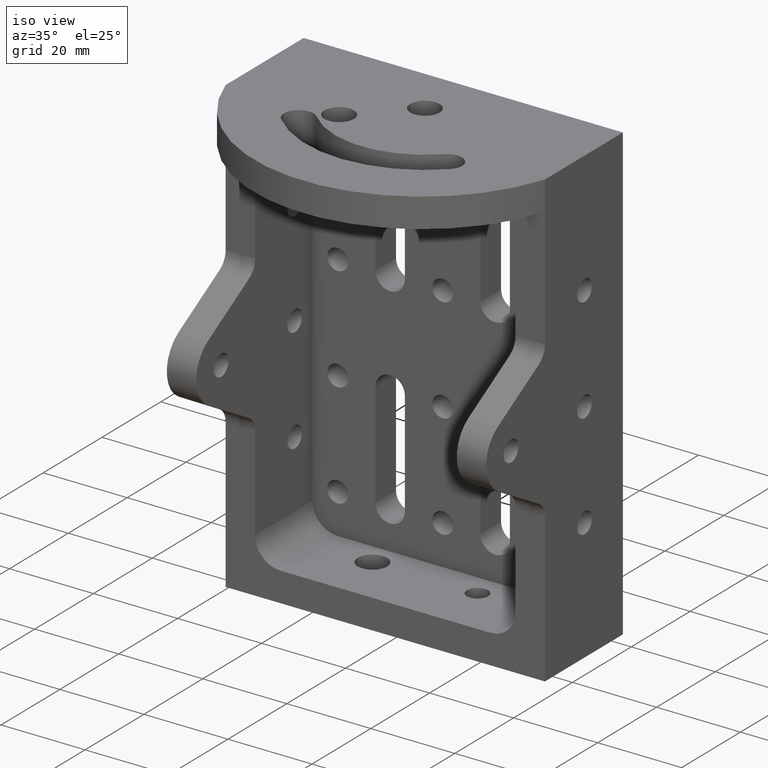
[diagram: clean part render]
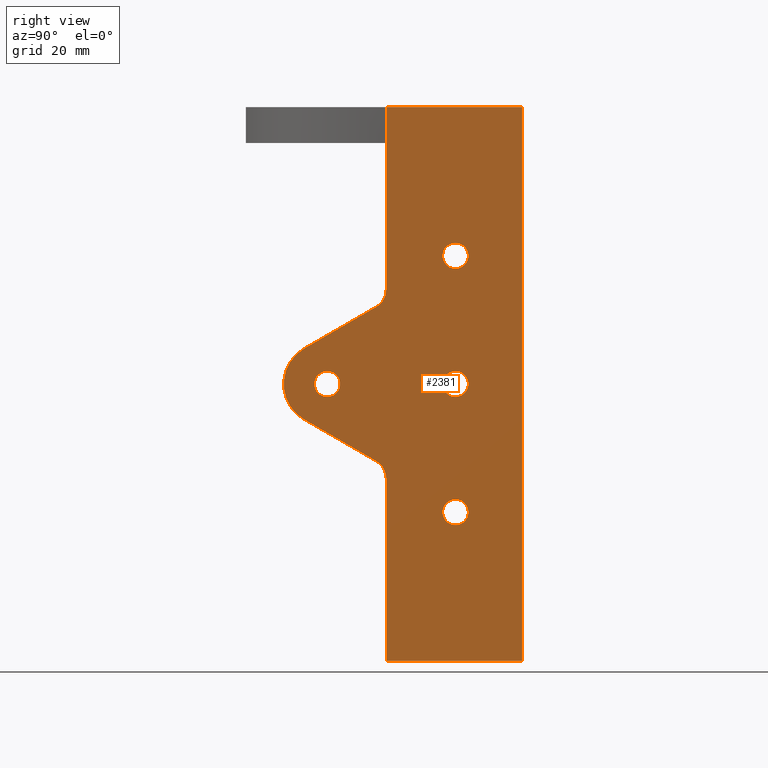
[diagram: tour spotlight — one face highlighted and labeled with its STEP entity id]
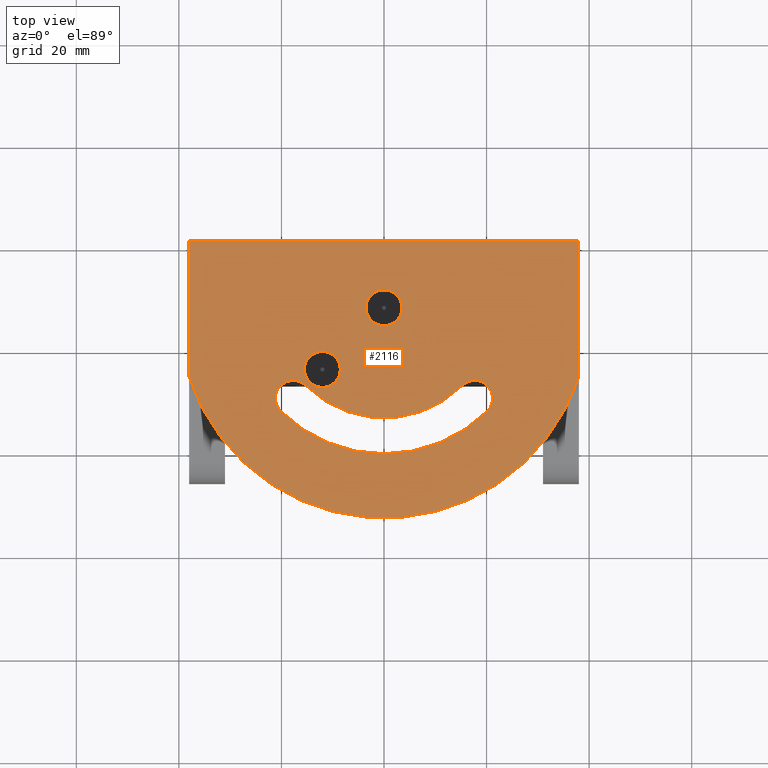
[diagram: tour spotlight — one face highlighted and labeled with its STEP entity id]
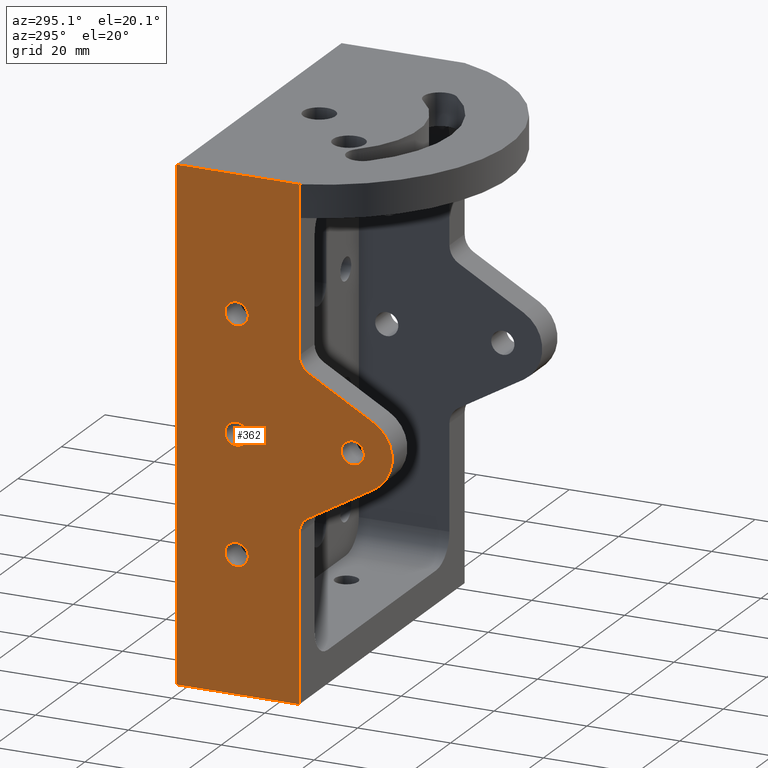
[diagram: tour spotlight — one face highlighted and labeled with its STEP entity id]
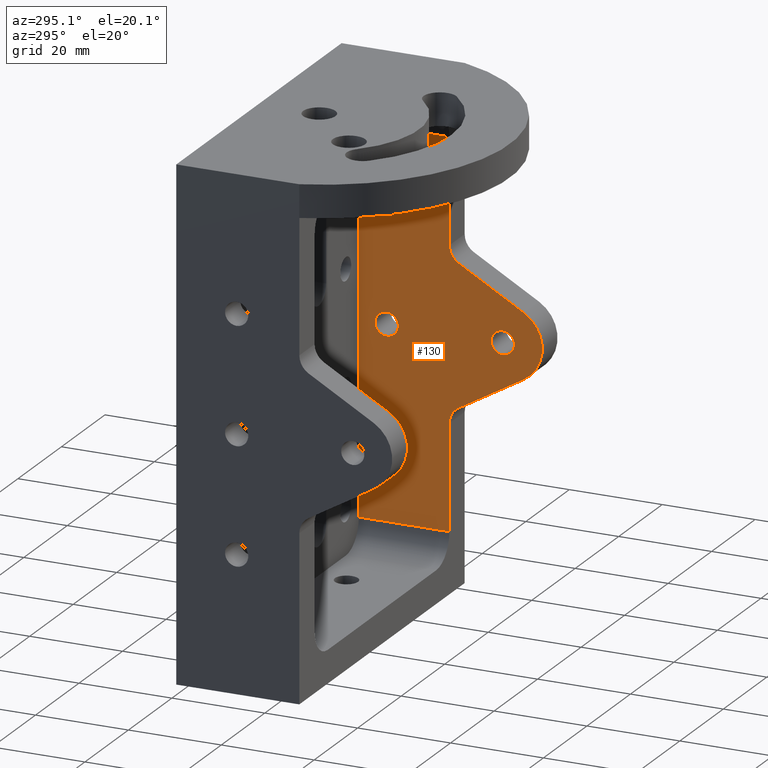
[diagram: tour spotlight — one face highlighted and labeled with its STEP entity id]
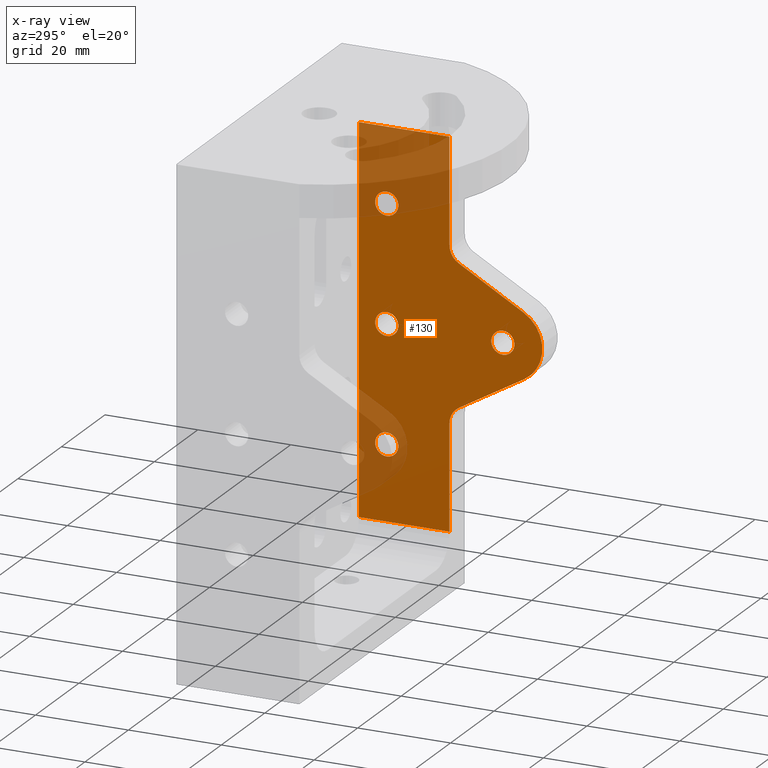
[diagram: x-ray of the same camera — body ghosted, this tour face saturated]
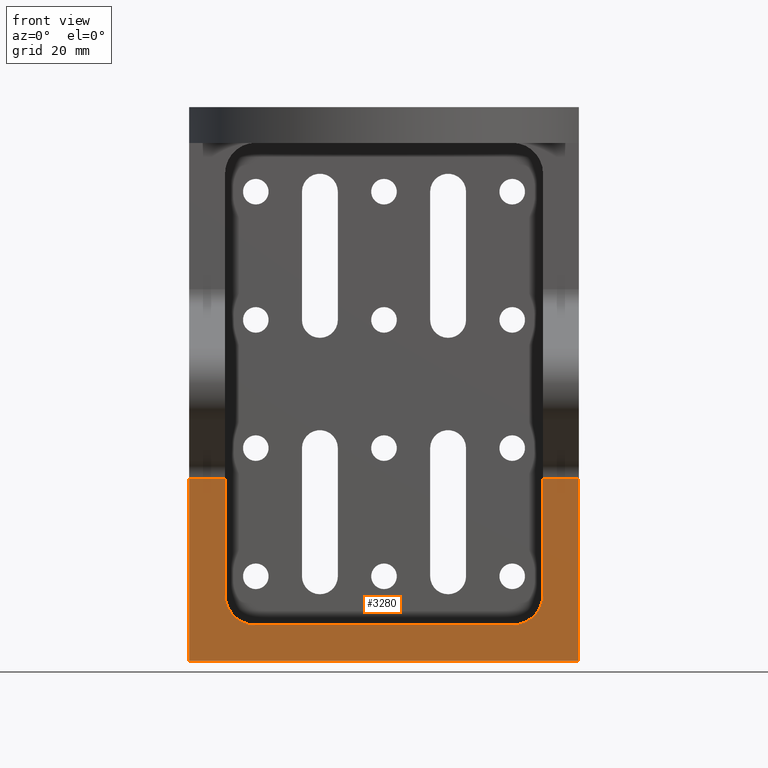
[diagram: tour spotlight — one face highlighted and labeled with its STEP entity id]
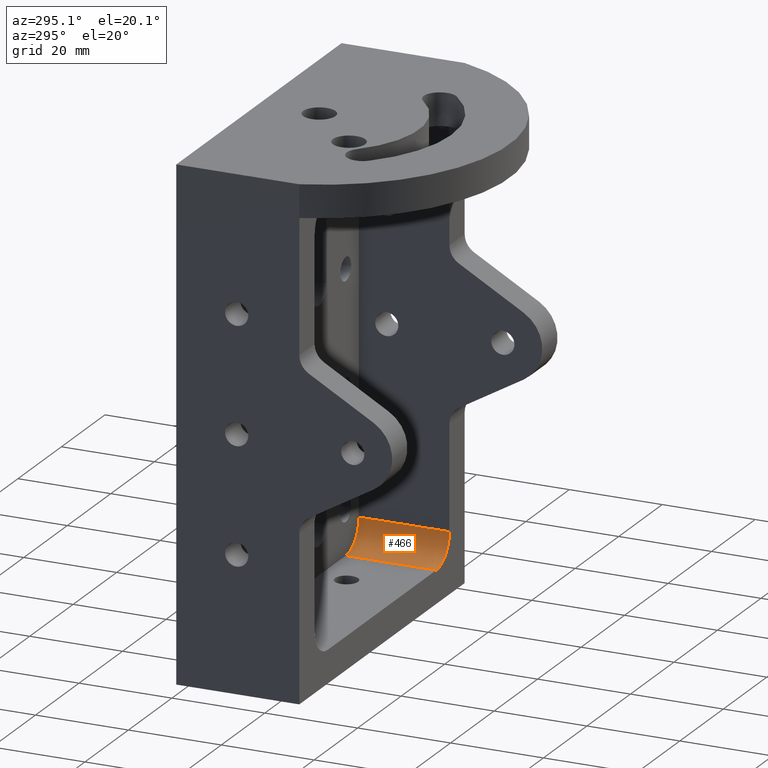
[diagram: tour spotlight — one face highlighted and labeled with its STEP entity id]
A machine part: a face-by-face anatomy tour. The part has 103 B-rep faces; the first image is the clean iso view, then the 6 largest visible faces are spotlighted one at a time (largest first), each with its STEP entity span.

Face 1 — right view, entity #2381. In plain terms, the highlighted planar face has unit normal (-1, 0, 0).
Definition (entity closure, byte-faithful):
#41 = DIRECTION ( 'NONE',  ( 0.0000000000000000000, 0.0000000000000000000, 1.000000000000000000 ) ) ;
#50 = DIRECTION ( 'NONE',  ( -1.000000000000000000, 0.0000000000000000000, 0.0000000000000000000 ) ) ;
#65 = EDGE_CURVE ( 'NONE', #3290, #1315, #1600, .T. ) ;
#120 = CARTESIAN_POINT ( 'NONE',  ( 38.00000000000000000, -26.50332882212206800, 18.48000000000000400 ) ) ;
#218 = DIRECTION ( 'NONE',  ( -1.000000000000000000, -0.0000000000000000000, -0.0000000000000000000 ) ) ;
#226 = LINE ( 'NONE', #998, #980 ) ;
#257 = DIRECTION ( 'NONE',  ( -1.000000000000000000, -0.0000000000000000000, -0.0000000000000000000 ) ) ;
#269 = CARTESIAN_POINT ( 'NONE',  ( 38.00000000000000000, -12.99999999999999500, 22.50000000000001800 ) ) ;
#270 = EDGE_CURVE ( 'NONE', #271, #2842, #827, .T. ) ;
#271 = VERTEX_POINT ( 'NONE', #878 ) ;
#291 = VERTEX_POINT ( 'NONE', #1792 ) ;
#327 = DIRECTION ( 'NONE',  ( -1.000000000000000000, 0.0000000000000000000, -0.0000000000000000000 ) ) ;
#340 = EDGE_CURVE ( 'NONE', #1175, #2712, #954, .T. ) ;
#372 = CARTESIAN_POINT ( 'NONE',  ( 38.00000000000000000, -26.50332882212206100, -18.48000000000000000 ) ) ;
#400 = EDGE_LOOP ( 'NONE', ( #1880, #680 ) ) ;
#444 = CARTESIAN_POINT ( 'NONE',  ( 38.00000000000000000, -12.99999999999999500, 24.99999999999999600 ) ) ;
#447 = DIRECTION ( 'NONE',  ( 0.0000000000000000000, 0.0000000000000000000, 1.000000000000000000 ) ) ;
#473 = DIRECTION ( 'NONE',  ( -0.0000000000000000000, -0.0000000000000000000, 1.000000000000000000 ) ) ;
#528 = EDGE_CURVE ( 'NONE', #2221, #2854, #3118, .T. ) ;
#551 = AXIS2_PLACEMENT_3D ( 'NONE', #444, #3324, #2462 ) ;
#666 = CARTESIAN_POINT ( 'NONE',  ( 38.00000000000000700, -26.49999599679667700, 54.00000000000000000 ) ) ;
#680 = ORIENTED_EDGE ( 'NONE', *, *, #340, .T. ) ;
#687 = DIRECTION ( 'NONE',  ( 3.469446257508670300E-016, 1.000000000000000000, 0.0000000000000000000 ) ) ;
#693 = EDGE_CURVE ( 'NONE', #2712, #1175, #986, .T. ) ;
#702 = CARTESIAN_POINT ( 'NONE',  ( 38.00000000000000000, -13.00000000000000200, -25.00000000000000400 ) ) ;
#731 = EDGE_CURVE ( 'NONE', #1185, #3116, #1120, .T. ) ;
#735 = LINE ( 'NONE', #1082, #3476 ) ;
#749 = ORIENTED_EDGE ( 'NONE', *, *, #868, .T. ) ;
#751 = AXIS2_PLACEMENT_3D ( 'NONE', #1404, #1717, #3385 ) ;
#761 = EDGE_CURVE ( 'NONE', #3552, #3331, #226, .T. ) ;
#767 = EDGE_CURVE ( 'NONE', #3116, #1185, #1303, .T. ) ;
#797 = VECTOR ( 'NONE', #1126, 1000.000000000000000 ) ;
#827 = CIRCLE ( 'NONE', #2157, 4.001245393571729800 ) ;
#834 = LINE ( 'NONE', #1327, #3703 ) ;
#868 = EDGE_CURVE ( 'NONE', #1837, #2345, #2429, .T. ) ;
#878 = CARTESIAN_POINT ( 'NONE',  ( 38.00000000000000000, -28.51232305191474100, -15.01000000000000200 ) ) ;
#911 = LINE ( 'NONE', #1821, #2773 ) ;
#954 = CIRCLE ( 'NONE', #3108, 2.499999999999981300 ) ;
#980 = VECTOR ( 'NONE', #1591, 1000.000000000000200 ) ;
#986 = CIRCLE ( 'NONE', #1430, 2.499999999999981300 ) ;
#998 = CARTESIAN_POINT ( 'NONE',  ( 38.00000000000000000, -13.63485860111812400, 23.60397975431279600 ) ) ;
#1026 = CARTESIAN_POINT ( 'NONE',  ( 38.00000000000000000, -2.842170943040400700E-014, 54.00000000000000000 ) ) ;
#1082 = CARTESIAN_POINT ( 'NONE',  ( 38.00000000000000000, -2.842170943040400700E-014, 54.00000000000000000 ) ) ;
#1120 = CIRCLE ( 'NONE', #551, 2.499999999999981300 ) ;
#1126 = DIRECTION ( 'NONE',  ( -0.0000000000000000000, 1.000000000000000000, -0.0000000000000000000 ) ) ;
#1137 = DIRECTION ( 'NONE',  ( 0.0000000000000000000, 0.0000000000000000000, 1.000000000000000000 ) ) ;
#1157 = VERTEX_POINT ( 'NONE', #120 ) ;
#1164 = ORIENTED_EDGE ( 'NONE', *, *, #1684, .F. ) ;
#1165 = PLANE ( 'NONE',  #2410 ) ;
#1175 = VERTEX_POINT ( 'NONE', #2432 ) ;
#1185 = VERTEX_POINT ( 'NONE', #3028 ) ;
#1194 = CIRCLE ( 'NONE', #751, 2.499999999999981300 ) ;
#1220 = CARTESIAN_POINT ( 'NONE',  ( 38.00000000000000000, -30.50457421569379000, -18.48000000000000000 ) ) ;
#1258 = VECTOR ( 'NONE', #473, 1000.000000000000000 ) ;
#1285 = DIRECTION ( 'NONE',  ( -1.000000000000000000, -0.0000000000000000000, -0.0000000000000000000 ) ) ;
#1303 = CIRCLE ( 'NONE', #1376, 2.499999999999981300 ) ;
#1315 = VERTEX_POINT ( 'NONE', #2823 ) ;
#1327 = CARTESIAN_POINT ( 'NONE',  ( 38.00000000000000000, -13.63485860111813400, -23.60397975431280000 ) ) ;
#1376 = AXIS2_PLACEMENT_3D ( 'NONE', #1984, #257, #1663 ) ;
#1383 = ORIENTED_EDGE ( 'NONE', *, *, #3498, .F. ) ;
#1393 = CARTESIAN_POINT ( 'NONE',  ( 38.00000000000000700, -26.49999599679667700, 44.00000000000000000 ) ) ;
#1394 = VERTEX_POINT ( 'NONE', #666 ) ;
#1400 = DIRECTION ( 'NONE',  ( 0.0000000000000000000, 0.0000000000000000000, 1.000000000000000000 ) ) ;
#1404 = CARTESIAN_POINT ( 'NONE',  ( 38.00000000000000000, -13.00000000000000200, -1.734723475976807100E-015 ) ) ;
#1430 = AXIS2_PLACEMENT_3D ( 'NONE', #3526, #3220, #2097 ) ;
#1445 = ORIENTED_EDGE ( 'NONE', *, *, #1916, .F. ) ;
#1458 = CARTESIAN_POINT ( 'NONE',  ( 38.00000000000000000, -26.50332882212206400, -3.224119684380701700E-015 ) ) ;
#1512 = DIRECTION ( 'NONE',  ( 0.0000000000000000000, 0.0000000000000000000, 1.000000000000000000 ) ) ;
#1515 = CIRCLE ( 'NONE', #3581, 8.003124175496838100 ) ;
#1541 = CARTESIAN_POINT ( 'NONE',  ( 38.00000000000000000, -38.00000000000000700, -2.499999999999979600 ) ) ;
#1591 = DIRECTION ( 'NONE',  ( 0.0000000000000000000, 0.8659126844886195800, 0.5001951847446276500 ) ) ;
#1600 = CIRCLE ( 'NONE', #3249, 2.499999999999981300 ) ;
#1607 = CARTESIAN_POINT ( 'NONE',  ( 38.00000000000000000, -13.00000000000000200, 2.499999999999979600 ) ) ;
#1655 = CARTESIAN_POINT ( 'NONE',  ( 38.00000000000000000, -13.00000000000000200, -2.499999999999983100 ) ) ;
#1657 = CARTESIAN_POINT ( 'NONE',  ( 38.00000000000000000, -38.00000000000000700, 1.734723475976807100E-015 ) ) ;
#1663 = DIRECTION ( 'NONE',  ( 0.0000000000000000000, 0.0000000000000000000, 1.000000000000000000 ) ) ;
#1667 = EDGE_CURVE ( 'NONE', #1315, #3290, #2599, .T. ) ;
#1684 = EDGE_CURVE ( 'NONE', #271, #1895, #834, .T. ) ;
#1691 = CARTESIAN_POINT ( 'NONE',  ( 38.00000000000000000, -42.49999999999997900, 6.930006739100242000 ) ) ;
#1708 = DIRECTION ( 'NONE',  ( 0.0000000000000000000, 0.0000000000000000000, 1.000000000000000000 ) ) ;
#1709 = CARTESIAN_POINT ( 'NONE',  ( 38.00000000000000700, -26.50332882212207200, 44.00000000000000000 ) ) ;
#1711 = AXIS2_PLACEMENT_3D ( 'NONE', #3186, #2594, #1708 ) ;
#1717 = DIRECTION ( 'NONE',  ( -1.000000000000000000, -0.0000000000000000000, -0.0000000000000000000 ) ) ;
#1748 = LINE ( 'NONE', #2831, #797 ) ;
#1792 = CARTESIAN_POINT ( 'NONE',  ( 38.00000000000000000, -26.50332882212206100, -53.99999999999999300 ) ) ;
#1805 = CARTESIAN_POINT ( 'NONE',  ( 38.00000000000000000, -2.842170943040400700E-014, -54.00000000000000000 ) ) ;
#1821 = CARTESIAN_POINT ( 'NONE',  ( 38.00000000000000000, -46.50000000000002800, 44.00000000000000000 ) ) ;
#1823 = DIRECTION ( 'NONE',  ( 0.0000000000000000000, 0.0000000000000000000, 1.000000000000000000 ) ) ;
#1837 = VERTEX_POINT ( 'NONE', #1655 ) ;
#1864 = ORIENTED_EDGE ( 'NONE', *, *, #2502, .F. ) ;
#1880 = ORIENTED_EDGE ( 'NONE', *, *, #693, .T. ) ;
#1895 = VERTEX_POINT ( 'NONE', #2632 ) ;
#1916 = EDGE_CURVE ( 'NONE', #1157, #3073, #1918, .T. ) ;
#1918 = LINE ( 'NONE', #1458, #2405 ) ;
#1927 = CARTESIAN_POINT ( 'NONE',  ( 38.00000000000000000, -38.00000000000000700, 1.734723475976807100E-015 ) ) ;
#1984 = CARTESIAN_POINT ( 'NONE',  ( 38.00000000000000000, -12.99999999999999500, 24.99999999999999600 ) ) ;
#2015 = VECTOR ( 'NONE', #41, 1000.000000000000000 ) ;
#2053 = EDGE_CURVE ( 'NONE', #3073, #3470, #911, .T. ) ;
#2097 = DIRECTION ( 'NONE',  ( 0.0000000000000000000, 0.0000000000000000000, 1.000000000000000000 ) ) ;
#2157 = AXIS2_PLACEMENT_3D ( 'NONE', #1220, #327, #1512 ) ;
#2180 = EDGE_CURVE ( 'NONE', #2345, #1837, #1194, .T. ) ;
#2188 = VECTOR ( 'NONE', #3611, 1000.000000000000000 ) ;
#2201 = CARTESIAN_POINT ( 'NONE',  ( 38.00000000000000700, -26.49999599679667700, 44.00000000000000000 ) ) ;
#2206 = CIRCLE ( 'NONE', #2879, 4.001245393571728000 ) ;
#2214 = ORIENTED_EDGE ( 'NONE', *, *, #1667, .T. ) ;
#2221 = VERTEX_POINT ( 'NONE', #1026 ) ;
#2224 = ORIENTED_EDGE ( 'NONE', *, *, #767, .T. ) ;
#2233 = DIRECTION ( 'NONE',  ( 0.0000000000000000000, -0.8659126844886195800, 0.5001951847446278700 ) ) ;
#2320 = CARTESIAN_POINT ( 'NONE',  ( 38.00000000000000000, -2.842170943040400700E-014, 54.00000000000000000 ) ) ;
#2345 = VERTEX_POINT ( 'NONE', #1607 ) ;
#2363 = EDGE_LOOP ( 'NONE', ( #2214, #2804 ) ) ;
#2365 = LINE ( 'NONE', #3180, #2015 ) ;
#2368 = DIRECTION ( 'NONE',  ( -1.000000000000000000, 0.0000000000000000000, -0.0000000000000000000 ) ) ;
#2381 = ADVANCED_FACE ( 'NONE', ( #2967, #2418, #3666, #3276, #2920 ), #1165, .F. ) ;
#2405 = VECTOR ( 'NONE', #3454, 1000.000000000000000 ) ;
#2410 = AXIS2_PLACEMENT_3D ( 'NONE', #2320, #50, #3177 ) ;
#2418 = FACE_BOUND ( 'NONE', #400, .T. ) ;
#2429 = CIRCLE ( 'NONE', #1711, 2.499999999999981300 ) ;
#2432 = CARTESIAN_POINT ( 'NONE',  ( 38.00000000000000000, -13.00000000000000200, -27.49999999999998600 ) ) ;
#2462 = DIRECTION ( 'NONE',  ( 0.0000000000000000000, 0.0000000000000000000, 1.000000000000000000 ) ) ;
#2496 = EDGE_LOOP ( 'NONE', ( #1383, #1864, #3522, #1445, #3642, #2856, #3071, #1164, #2677, #3360, #2561, #3669 ) ) ;
#2502 = EDGE_CURVE ( 'NONE', #3470, #1394, #3059, .T. ) ;
#2561 = ORIENTED_EDGE ( 'NONE', *, *, #2668, .T. ) ;
#2594 = DIRECTION ( 'NONE',  ( -1.000000000000000000, -0.0000000000000000000, -0.0000000000000000000 ) ) ;
#2599 = CIRCLE ( 'NONE', #3702, 2.499999999999981300 ) ;
#2632 = CARTESIAN_POINT ( 'NONE',  ( 38.00000000000000000, -42.49999999999997900, -6.930006739100238500 ) ) ;
#2668 = EDGE_CURVE ( 'NONE', #291, #2854, #1748, .T. ) ;
#2677 = ORIENTED_EDGE ( 'NONE', *, *, #270, .T. ) ;
#2701 = EDGE_CURVE ( 'NONE', #291, #2842, #2365, .T. ) ;
#2706 = CARTESIAN_POINT ( 'NONE',  ( 38.00000000000000000, -28.51232305191474100, 15.00999999999999600 ) ) ;
#2712 = VERTEX_POINT ( 'NONE', #2907 ) ;
#2773 = VECTOR ( 'NONE', #687, 1000.000000000000000 ) ;
#2783 = EDGE_LOOP ( 'NONE', ( #3315, #2224 ) ) ;
#2788 = EDGE_CURVE ( 'NONE', #1157, #3331, #2206, .T. ) ;
#2804 = ORIENTED_EDGE ( 'NONE', *, *, #65, .T. ) ;
#2823 = CARTESIAN_POINT ( 'NONE',  ( 38.00000000000000000, -38.00000000000000700, 2.499999999999983100 ) ) ;
#2831 = CARTESIAN_POINT ( 'NONE',  ( 38.00000000000000000, -2.842170943040400700E-014, -54.00000000000000000 ) ) ;
#2842 = VERTEX_POINT ( 'NONE', #372 ) ;
#2854 = VERTEX_POINT ( 'NONE', #1805 ) ;
#2856 = ORIENTED_EDGE ( 'NONE', *, *, #761, .F. ) ;
#2867 = CARTESIAN_POINT ( 'NONE',  ( 38.00000000000000000, -38.49687582450313500, 9.801000403789793100E-016 ) ) ;
#2879 = AXIS2_PLACEMENT_3D ( 'NONE', #2969, #2368, #3499 ) ;
#2907 = CARTESIAN_POINT ( 'NONE',  ( 38.00000000000000000, -13.00000000000000200, -22.50000000000002500 ) ) ;
#2920 = FACE_OUTER_BOUND ( 'NONE', #2496, .T. ) ;
#2926 = EDGE_LOOP ( 'NONE', ( #3630, #749 ) ) ;
#2967 = FACE_BOUND ( 'NONE', #2363, .T. ) ;
#2969 = CARTESIAN_POINT ( 'NONE',  ( 38.00000000000000000, -30.50457421569379300, 18.47999999999999300 ) ) ;
#3028 = CARTESIAN_POINT ( 'NONE',  ( 38.00000000000000000, -12.99999999999999500, 27.49999999999997900 ) ) ;
#3059 = LINE ( 'NONE', #2201, #1258 ) ;
#3060 = DIRECTION ( 'NONE',  ( -1.000000000000000000, -0.0000000000000000000, -0.0000000000000000000 ) ) ;
#3063 = EDGE_CURVE ( 'NONE', #1895, #3552, #1515, .T. ) ;
#3071 = ORIENTED_EDGE ( 'NONE', *, *, #3063, .F. ) ;
#3073 = VERTEX_POINT ( 'NONE', #1709 ) ;
#3097 = DIRECTION ( 'NONE',  ( -0.0000000000000000000, 1.000000000000000000, -0.0000000000000000000 ) ) ;
#3108 = AXIS2_PLACEMENT_3D ( 'NONE', #702, #1285, #1823 ) ;
#3116 = VERTEX_POINT ( 'NONE', #269 ) ;
#3118 = LINE ( 'NONE', #3314, #2188 ) ;
#3149 = DIRECTION ( 'NONE',  ( -1.000000000000000000, 0.0000000000000000000, -0.0000000000000000000 ) ) ;
#3177 = DIRECTION ( 'NONE',  ( 0.0000000000000000000, 0.0000000000000000000, 1.000000000000000000 ) ) ;
#3180 = CARTESIAN_POINT ( 'NONE',  ( 38.00000000000000000, -26.50332882212206100, 0.0000000000000000000 ) ) ;
#3186 = CARTESIAN_POINT ( 'NONE',  ( 38.00000000000000000, -13.00000000000000200, -1.734723475976807100E-015 ) ) ;
#3220 = DIRECTION ( 'NONE',  ( -1.000000000000000000, -0.0000000000000000000, -0.0000000000000000000 ) ) ;
#3249 = AXIS2_PLACEMENT_3D ( 'NONE', #1657, #218, #1400 ) ;
#3276 = FACE_BOUND ( 'NONE', #2783, .T. ) ;
#3290 = VERTEX_POINT ( 'NONE', #1541 ) ;
#3314 = CARTESIAN_POINT ( 'NONE',  ( 38.00000000000000000, -2.842170943040400700E-014, 54.00000000000000000 ) ) ;
#3315 = ORIENTED_EDGE ( 'NONE', *, *, #731, .T. ) ;
#3324 = DIRECTION ( 'NONE',  ( -1.000000000000000000, -0.0000000000000000000, -0.0000000000000000000 ) ) ;
#3331 = VERTEX_POINT ( 'NONE', #2706 ) ;
#3360 = ORIENTED_EDGE ( 'NONE', *, *, #2701, .F. ) ;
#3385 = DIRECTION ( 'NONE',  ( 0.0000000000000000000, 0.0000000000000000000, 1.000000000000000000 ) ) ;
#3454 = DIRECTION ( 'NONE',  ( 0.0000000000000000000, -1.216496126210969100E-016, 1.000000000000000000 ) ) ;
#3470 = VERTEX_POINT ( 'NONE', #1393 ) ;
#3476 = VECTOR ( 'NONE', #3097, 1000.000000000000000 ) ;
#3498 = EDGE_CURVE ( 'NONE', #1394, #2221, #735, .T. ) ;
#3499 = DIRECTION ( 'NONE',  ( 0.0000000000000000000, 0.0000000000000000000, 1.000000000000000000 ) ) ;
#3522 = ORIENTED_EDGE ( 'NONE', *, *, #2053, .F. ) ;
#3526 = CARTESIAN_POINT ( 'NONE',  ( 38.00000000000000000, -13.00000000000000200, -25.00000000000000400 ) ) ;
#3552 = VERTEX_POINT ( 'NONE', #1691 ) ;
#3581 = AXIS2_PLACEMENT_3D ( 'NONE', #2867, #3149, #1137 ) ;
#3611 = DIRECTION ( 'NONE',  ( -0.0000000000000000000, -0.0000000000000000000, -1.000000000000000000 ) ) ;
#3630 = ORIENTED_EDGE ( 'NONE', *, *, #2180, .T. ) ;
#3642 = ORIENTED_EDGE ( 'NONE', *, *, #2788, .T. ) ;
#3666 = FACE_BOUND ( 'NONE', #2926, .T. ) ;
#3669 = ORIENTED_EDGE ( 'NONE', *, *, #528, .F. ) ;
#3702 = AXIS2_PLACEMENT_3D ( 'NONE', #1927, #3060, #447 ) ;
#3703 = VECTOR ( 'NONE', #2233, 999.9999999999998900 ) ;

Face 2 — top view, entity #2116. In plain terms, the highlighted planar face has unit normal (0, 0, 1).
Definition (entity closure, byte-faithful):
#71 = LINE ( 'NONE', #77, #1964 ) ;
#77 = CARTESIAN_POINT ( 'NONE',  ( -38.00000000000000000, 2.842170943040400700E-014, 54.00000000000000000 ) ) ;
#80 = CARTESIAN_POINT ( 'NONE',  ( -21.17766952966376300, -30.67766952966367500, 54.00000000000000000 ) ) ;
#131 = DIRECTION ( 'NONE',  ( 1.000000000000000000, 0.0000000000000000000, 0.0000000000000000000 ) ) ;
#141 = DIRECTION ( 'NONE',  ( -0.0000000000000000000, -0.0000000000000000000, 1.000000000000000000 ) ) ;
#224 = VERTEX_POINT ( 'NONE', #80 ) ;
#246 = FACE_BOUND ( 'NONE', #2667, .T. ) ;
#344 = ORIENTED_EDGE ( 'NONE', *, *, #3498, .T. ) ;
#364 = CARTESIAN_POINT ( 'NONE',  ( -12.02000000000002300, -25.02000000000002800, 54.00000000000000000 ) ) ;
#438 = CIRCLE ( 'NONE', #1638, 3.500000000000012000 ) ;
#536 = CIRCLE ( 'NONE', #3104, 3.500000000000003100 ) ;
#599 = CIRCLE ( 'NONE', #2622, 3.500000000000012000 ) ;
#633 = ORIENTED_EDGE ( 'NONE', *, *, #3576, .F. ) ;
#639 = AXIS2_PLACEMENT_3D ( 'NONE', #364, #922, #2373 ) ;
#666 = CARTESIAN_POINT ( 'NONE',  ( 38.00000000000000700, -26.49999599679667700, 54.00000000000000000 ) ) ;
#671 = CIRCLE ( 'NONE', #1257, 39.99999999999996400 ) ;
#672 = DIRECTION ( 'NONE',  ( 0.0000000000000000000, 0.0000000000000000000, 1.000000000000000000 ) ) ;
#704 = EDGE_CURVE ( 'NONE', #2033, #224, #536, .T. ) ;
#725 = DIRECTION ( 'NONE',  ( 1.000000000000000000, 0.0000000000000000000, 0.0000000000000000000 ) ) ;
#735 = LINE ( 'NONE', #1082, #3476 ) ;
#759 = CIRCLE ( 'NONE', #863, 3.500000000000003100 ) ;
#796 = AXIS2_PLACEMENT_3D ( 'NONE', #1399, #3696, #1656 ) ;
#822 = EDGE_CURVE ( 'NONE', #2221, #3005, #3100, .T. ) ;
#832 = EDGE_CURVE ( 'NONE', #2325, #1394, #671, .T. ) ;
#841 = ORIENTED_EDGE ( 'NONE', *, *, #3425, .F. ) ;
#863 = AXIS2_PLACEMENT_3D ( 'NONE', #1990, #2267, #1374 ) ;
#875 = DIRECTION ( 'NONE',  ( 0.0000000000000000000, 0.0000000000000000000, 1.000000000000000000 ) ) ;
#884 = VECTOR ( 'NONE', #1637, 1000.000000000000000 ) ;
#922 = DIRECTION ( 'NONE',  ( -0.0000000000000000000, -0.0000000000000000000, 1.000000000000000000 ) ) ;
#970 = DIRECTION ( 'NONE',  ( 0.0000000000000000000, -1.000000000000000000, 0.0000000000000000000 ) ) ;
#991 = ORIENTED_EDGE ( 'NONE', *, *, #3359, .F. ) ;
#996 = CIRCLE ( 'NONE', #1599, 3.500000000000003100 ) ;
#1010 = CARTESIAN_POINT ( 'NONE',  ( -38.00000000000000700, -26.49999599679667700, 54.00000000000000000 ) ) ;
#1026 = CARTESIAN_POINT ( 'NONE',  ( 38.00000000000000000, -2.842170943040400700E-014, 54.00000000000000000 ) ) ;
#1053 = FACE_OUTER_BOUND ( 'NONE', #3478, .T. ) ;
#1066 = CARTESIAN_POINT ( 'NONE',  ( -8.520000000000010200, -25.02000000000002800, 54.00000000000000000 ) ) ;
#1082 = CARTESIAN_POINT ( 'NONE',  ( 38.00000000000000000, -2.842170943040400700E-014, 54.00000000000000000 ) ) ;
#1097 = EDGE_CURVE ( 'NONE', #2351, #1782, #2024, .T. ) ;
#1215 = ORIENTED_EDGE ( 'NONE', *, *, #704, .F. ) ;
#1240 = FACE_BOUND ( 'NONE', #1935, .T. ) ;
#1257 = AXIS2_PLACEMENT_3D ( 'NONE', #1721, #875, #2855 ) ;
#1374 = DIRECTION ( 'NONE',  ( 1.000000000000000000, 0.0000000000000000000, 0.0000000000000000000 ) ) ;
#1394 = VERTEX_POINT ( 'NONE', #666 ) ;
#1396 = VERTEX_POINT ( 'NONE', #2092 ) ;
#1399 = CARTESIAN_POINT ( 'NONE',  ( 0.0000000000000000000, -12.99999999999997200, 54.00000000000000000 ) ) ;
#1436 = DIRECTION ( 'NONE',  ( 1.000000000000000000, 0.0000000000000000000, 0.0000000000000000000 ) ) ;
#1489 = ORIENTED_EDGE ( 'NONE', *, *, #2579, .F. ) ;
#1492 = CARTESIAN_POINT ( 'NONE',  ( -15.20279579551081500, -28.20279579551074200, 54.00000000000000000 ) ) ;
#1519 = DIRECTION ( 'NONE',  ( 1.000000000000000000, 0.0000000000000000000, 0.0000000000000000000 ) ) ;
#1599 = AXIS2_PLACEMENT_3D ( 'NONE', #2682, #2127, #1519 ) ;
#1627 = CARTESIAN_POINT ( 'NONE',  ( 20.15254326381661400, -33.15254326381662500, 54.00000000000000000 ) ) ;
#1637 = DIRECTION ( 'NONE',  ( -1.000000000000000000, 7.479397218527370900E-016, 0.0000000000000000000 ) ) ;
#1638 = AXIS2_PLACEMENT_3D ( 'NONE', #1685, #2736, #2819 ) ;
#1656 = DIRECTION ( 'NONE',  ( 1.000000000000000000, 0.0000000000000000000, 0.0000000000000000000 ) ) ;
#1685 = CARTESIAN_POINT ( 'NONE',  ( 0.0000000000000000000, -12.99999999999997200, 54.00000000000000000 ) ) ;
#1721 = CARTESIAN_POINT ( 'NONE',  ( 0.0000000000000000000, -14.01000000000000500, 54.00000000000000000 ) ) ;
#1725 = CARTESIAN_POINT ( 'NONE',  ( -3.500000000000012000, -12.99999999999997200, 54.00000000000000000 ) ) ;
#1782 = VERTEX_POINT ( 'NONE', #1066 ) ;
#1804 = CARTESIAN_POINT ( 'NONE',  ( 0.0000000000000000000, -14.01000000000000500, 54.00000000000000000 ) ) ;
#1831 = VERTEX_POINT ( 'NONE', #3656 ) ;
#1867 = CARTESIAN_POINT ( 'NONE',  ( -12.02000000000002300, -25.02000000000002800, 54.00000000000000000 ) ) ;
#1911 = VERTEX_POINT ( 'NONE', #1725 ) ;
#1935 = EDGE_LOOP ( 'NONE', ( #841, #2424 ) ) ;
#1964 = VECTOR ( 'NONE', #970, 1000.000000000000000 ) ;
#1990 = CARTESIAN_POINT ( 'NONE',  ( 17.67766952966372100, -30.67766952966363200, 54.00000000000000000 ) ) ;
#2024 = CIRCLE ( 'NONE', #2607, 3.500000000000012000 ) ;
#2033 = VERTEX_POINT ( 'NONE', #1492 ) ;
#2046 = ORIENTED_EDGE ( 'NONE', *, *, #2694, .F. ) ;
#2092 = CARTESIAN_POINT ( 'NONE',  ( -20.15254326381667100, -33.15254326381656800, 54.00000000000000000 ) ) ;
#2101 = EDGE_CURVE ( 'NONE', #3005, #2325, #71, .T. ) ;
#2115 = PLANE ( 'NONE',  #2313 ) ;
#2116 = ADVANCED_FACE ( 'NONE', ( #1240, #2191, #1053, #246 ), #2115, .T. ) ;
#2127 = DIRECTION ( 'NONE',  ( 0.0000000000000000000, 0.0000000000000000000, 1.000000000000000000 ) ) ;
#2165 = DIRECTION ( 'NONE',  ( 1.000000000000000000, 0.0000000000000000000, 0.0000000000000000000 ) ) ;
#2191 = FACE_BOUND ( 'NONE', #3252, .T. ) ;
#2215 = ORIENTED_EDGE ( 'NONE', *, *, #2101, .T. ) ;
#2221 = VERTEX_POINT ( 'NONE', #1026 ) ;
#2267 = DIRECTION ( 'NONE',  ( 0.0000000000000000000, 0.0000000000000000000, 1.000000000000000000 ) ) ;
#2313 = AXIS2_PLACEMENT_3D ( 'NONE', #1804, #672, #2355 ) ;
#2325 = VERTEX_POINT ( 'NONE', #1010 ) ;
#2344 = CARTESIAN_POINT ( 'NONE',  ( 0.0000000000000000000, -12.99999999999997200, 54.00000000000000000 ) ) ;
#2351 = VERTEX_POINT ( 'NONE', #2998 ) ;
#2355 = DIRECTION ( 'NONE',  ( 1.000000000000000000, 0.0000000000000000000, -0.0000000000000000000 ) ) ;
#2373 = DIRECTION ( 'NONE',  ( 1.000000000000000000, 0.0000000000000000000, 0.0000000000000000000 ) ) ;
#2424 = ORIENTED_EDGE ( 'NONE', *, *, #2439, .F. ) ;
#2439 = EDGE_CURVE ( 'NONE', #1911, #1831, #438, .T. ) ;
#2579 = EDGE_CURVE ( 'NONE', #2984, #3189, #759, .T. ) ;
#2581 = ORIENTED_EDGE ( 'NONE', *, *, #822, .T. ) ;
#2607 = AXIS2_PLACEMENT_3D ( 'NONE', #1867, #141, #131 ) ;
#2608 = DIRECTION ( 'NONE',  ( -0.0000000000000000000, -0.0000000000000000000, -1.000000000000000000 ) ) ;
#2609 = CIRCLE ( 'NONE', #796, 28.50000000000003900 ) ;
#2622 = AXIS2_PLACEMENT_3D ( 'NONE', #3030, #3651, #725 ) ;
#2644 = EDGE_CURVE ( 'NONE', #1396, #2984, #2609, .T. ) ;
#2667 = EDGE_LOOP ( 'NONE', ( #3139, #633, #1215, #2046, #1489 ) ) ;
#2682 = CARTESIAN_POINT ( 'NONE',  ( -17.67766952966376000, -30.67766952966367500, 54.00000000000000000 ) ) ;
#2693 = DIRECTION ( 'NONE',  ( 0.0000000000000000000, 0.0000000000000000000, 1.000000000000000000 ) ) ;
#2694 = EDGE_CURVE ( 'NONE', #3189, #2033, #3272, .T. ) ;
#2736 = DIRECTION ( 'NONE',  ( -0.0000000000000000000, -0.0000000000000000000, 1.000000000000000000 ) ) ;
#2757 = ORIENTED_EDGE ( 'NONE', *, *, #832, .T. ) ;
#2807 = AXIS2_PLACEMENT_3D ( 'NONE', #2344, #2608, #1436 ) ;
#2819 = DIRECTION ( 'NONE',  ( 1.000000000000000000, 0.0000000000000000000, 0.0000000000000000000 ) ) ;
#2855 = DIRECTION ( 'NONE',  ( 1.000000000000000000, 0.0000000000000000000, 0.0000000000000000000 ) ) ;
#2966 = CARTESIAN_POINT ( 'NONE',  ( -17.67766952966376000, -30.67766952966367500, 54.00000000000000000 ) ) ;
#2984 = VERTEX_POINT ( 'NONE', #1627 ) ;
#2995 = CIRCLE ( 'NONE', #639, 3.500000000000012000 ) ;
#2998 = CARTESIAN_POINT ( 'NONE',  ( -15.52000000000003300, -25.02000000000002800, 54.00000000000000000 ) ) ;
#3005 = VERTEX_POINT ( 'NONE', #3664 ) ;
#3030 = CARTESIAN_POINT ( 'NONE',  ( 0.0000000000000000000, -12.99999999999997200, 54.00000000000000000 ) ) ;
#3097 = DIRECTION ( 'NONE',  ( -0.0000000000000000000, 1.000000000000000000, -0.0000000000000000000 ) ) ;
#3100 = LINE ( 'NONE', #3120, #884 ) ;
#3104 = AXIS2_PLACEMENT_3D ( 'NONE', #2966, #2693, #2165 ) ;
#3120 = CARTESIAN_POINT ( 'NONE',  ( 38.00000000000000000, -2.842170943040400700E-014, 54.00000000000000000 ) ) ;
#3139 = ORIENTED_EDGE ( 'NONE', *, *, #2644, .F. ) ;
#3189 = VERTEX_POINT ( 'NONE', #3209 ) ;
#3209 = CARTESIAN_POINT ( 'NONE',  ( 15.20279579551078800, -28.20279579551077000, 54.00000000000000000 ) ) ;
#3231 = ORIENTED_EDGE ( 'NONE', *, *, #1097, .F. ) ;
#3252 = EDGE_LOOP ( 'NONE', ( #991, #3231 ) ) ;
#3272 = CIRCLE ( 'NONE', #2807, 21.50000000000002800 ) ;
#3359 = EDGE_CURVE ( 'NONE', #1782, #2351, #2995, .T. ) ;
#3425 = EDGE_CURVE ( 'NONE', #1831, #1911, #599, .T. ) ;
#3476 = VECTOR ( 'NONE', #3097, 1000.000000000000000 ) ;
#3478 = EDGE_LOOP ( 'NONE', ( #2757, #344, #2581, #2215 ) ) ;
#3498 = EDGE_CURVE ( 'NONE', #1394, #2221, #735, .T. ) ;
#3576 = EDGE_CURVE ( 'NONE', #224, #1396, #996, .T. ) ;
#3651 = DIRECTION ( 'NONE',  ( -0.0000000000000000000, -0.0000000000000000000, 1.000000000000000000 ) ) ;
#3656 = CARTESIAN_POINT ( 'NONE',  ( 3.500000000000012000, -12.99999999999997200, 54.00000000000000000 ) ) ;
#3664 = CARTESIAN_POINT ( 'NONE',  ( -38.00000000000000000, 2.842170943040400700E-014, 54.00000000000000000 ) ) ;
#3696 = DIRECTION ( 'NONE',  ( 0.0000000000000000000, 0.0000000000000000000, 1.000000000000000000 ) ) ;

Face 3 — auxiliary view, entity #362. In plain terms, the highlighted planar face has unit normal (1, 0, -0).
Definition (entity closure, byte-faithful):
#5 = CARTESIAN_POINT ( 'NONE',  ( -38.00000000000000700, -26.49999599679667700, 44.00000000000000000 ) ) ;
#53 = CARTESIAN_POINT ( 'NONE',  ( -38.00000000000000000, 2.842170943040400700E-014, -54.00000000000000000 ) ) ;
#71 = LINE ( 'NONE', #77, #1964 ) ;
#75 = AXIS2_PLACEMENT_3D ( 'NONE', #2219, #1338, #2209 ) ;
#77 = CARTESIAN_POINT ( 'NONE',  ( -38.00000000000000000, 2.842170943040400700E-014, 54.00000000000000000 ) ) ;
#93 = CARTESIAN_POINT ( 'NONE',  ( -38.00000000000000000, -26.50332882212206100, -53.99999999999999300 ) ) ;
#99 = ORIENTED_EDGE ( 'NONE', *, *, #2154, .F. ) ;
#123 = ORIENTED_EDGE ( 'NONE', *, *, #1316, .T. ) ;
#138 = CARTESIAN_POINT ( 'NONE',  ( -38.00000000000000000, -38.49687582450313500, 9.801000403789793100E-016 ) ) ;
#151 = ORIENTED_EDGE ( 'NONE', *, *, #260, .F. ) ;
#156 = CARTESIAN_POINT ( 'NONE',  ( -38.00000000000000000, -30.50457421569379000, -18.48000000000000000 ) ) ;
#161 = CARTESIAN_POINT ( 'NONE',  ( -38.00000000000000000, -38.00000000000000700, 1.734723475976807100E-015 ) ) ;
#199 = CARTESIAN_POINT ( 'NONE',  ( -38.00000000000000000, -12.99999999999999500, 24.99999999999999600 ) ) ;
#237 = CARTESIAN_POINT ( 'NONE',  ( -38.00000000000000000, -12.99999999999999500, 22.50000000000000700 ) ) ;
#249 = VECTOR ( 'NONE', #3327, 1000.000000000000000 ) ;
#260 = EDGE_CURVE ( 'NONE', #2441, #855, #421, .T. ) ;
#275 = CARTESIAN_POINT ( 'NONE',  ( -38.00000000000000000, -12.99999999999999500, 27.49999999999998900 ) ) ;
#313 = ORIENTED_EDGE ( 'NONE', *, *, #3527, .F. ) ;
#349 = VERTEX_POINT ( 'NONE', #53 ) ;
#362 = ADVANCED_FACE ( 'NONE', ( #1372, #2993, #2231, #1461, #695 ), #1248, .F. ) ;
#404 = LINE ( 'NONE', #3376, #2714 ) ;
#421 = CIRCLE ( 'NONE', #2207, 2.499999999999992000 ) ;
#432 = DIRECTION ( 'NONE',  ( 0.0000000000000000000, 0.0000000000000000000, 1.000000000000000000 ) ) ;
#457 = CARTESIAN_POINT ( 'NONE',  ( -38.00000000000000000, -26.50332882212206800, 18.48000000000000400 ) ) ;
#475 = AXIS2_PLACEMENT_3D ( 'NONE', #3394, #521, #1673 ) ;
#486 = ORIENTED_EDGE ( 'NONE', *, *, #793, .T. ) ;
#502 = CARTESIAN_POINT ( 'NONE',  ( -38.00000000000000000, -13.00000000000000200, -25.00000000000000400 ) ) ;
#514 = EDGE_CURVE ( 'NONE', #2635, #2038, #1279, .T. ) ;
#516 = VERTEX_POINT ( 'NONE', #1912 ) ;
#521 = DIRECTION ( 'NONE',  ( -1.000000000000000000, -0.0000000000000000000, -0.0000000000000000000 ) ) ;
#526 = DIRECTION ( 'NONE',  ( -0.0000000000000000000, -0.0000000000000000000, -1.000000000000000000 ) ) ;
#539 = ORIENTED_EDGE ( 'NONE', *, *, #3485, .F. ) ;
#541 = CARTESIAN_POINT ( 'NONE',  ( -38.00000000000000000, -13.00000000000000200, -1.734723475976807100E-015 ) ) ;
#542 = DIRECTION ( 'NONE',  ( 3.469446257508680100E-016, -1.000000000000000000, 0.0000000000000000000 ) ) ;
#571 = CIRCLE ( 'NONE', #475, 2.499999999999992000 ) ;
#606 = EDGE_CURVE ( 'NONE', #349, #1978, #404, .T. ) ;
#621 = LINE ( 'NONE', #1609, #712 ) ;
#635 = CARTESIAN_POINT ( 'NONE',  ( -38.00000000000000000, -13.63485860111812400, 23.60397975431279600 ) ) ;
#695 = FACE_OUTER_BOUND ( 'NONE', #2388, .T. ) ;
#712 = VECTOR ( 'NONE', #787, 1000.000000000000000 ) ;
#713 = DIRECTION ( 'NONE',  ( -1.000000000000000000, -0.0000000000000000000, -0.0000000000000000000 ) ) ;
#715 = CARTESIAN_POINT ( 'NONE',  ( -38.00000000000000000, 2.842170943040400700E-014, 54.00000000000000000 ) ) ;
#722 = VERTEX_POINT ( 'NONE', #457 ) ;
#753 = EDGE_CURVE ( 'NONE', #2176, #2941, #3590, .T. ) ;
#756 = CARTESIAN_POINT ( 'NONE',  ( -38.00000000000000000, -13.63485860111813400, -23.60397975431280000 ) ) ;
#787 = DIRECTION ( 'NONE',  ( 0.0000000000000000000, 0.0000000000000000000, 1.000000000000000000 ) ) ;
#793 = EDGE_CURVE ( 'NONE', #3005, #349, #2213, .T. ) ;
#855 = VERTEX_POINT ( 'NONE', #1463 ) ;
#880 = CARTESIAN_POINT ( 'NONE',  ( -38.00000000000000000, -26.50332882212206400, -3.224119684380701700E-015 ) ) ;
#895 = EDGE_LOOP ( 'NONE', ( #2200, #3458 ) ) ;
#902 = VECTOR ( 'NONE', #542, 1000.000000000000000 ) ;
#938 = CARTESIAN_POINT ( 'NONE',  ( -38.00000000000000000, -13.00000000000000200, -2.499999999999993300 ) ) ;
#940 = DIRECTION ( 'NONE',  ( -1.000000000000000000, -0.0000000000000000000, -0.0000000000000000000 ) ) ;
#946 = ORIENTED_EDGE ( 'NONE', *, *, #1665, .T. ) ;
#970 = DIRECTION ( 'NONE',  ( 0.0000000000000000000, -1.000000000000000000, 0.0000000000000000000 ) ) ;
#997 = ORIENTED_EDGE ( 'NONE', *, *, #606, .T. ) ;
#999 = DIRECTION ( 'NONE',  ( -0.0000000000000000000, 0.0000000000000000000, -1.000000000000000000 ) ) ;
#1010 = CARTESIAN_POINT ( 'NONE',  ( -38.00000000000000700, -26.49999599679667700, 54.00000000000000000 ) ) ;
#1015 = EDGE_LOOP ( 'NONE', ( #151, #2558 ) ) ;
#1114 = DIRECTION ( 'NONE',  ( -1.000000000000000000, 0.0000000000000000000, -0.0000000000000000000 ) ) ;
#1131 = CARTESIAN_POINT ( 'NONE',  ( -38.00000000000000000, -13.00000000000000200, 2.499999999999990200 ) ) ;
#1186 = AXIS2_PLACEMENT_3D ( 'NONE', #2256, #1114, #2585 ) ;
#1212 = CARTESIAN_POINT ( 'NONE',  ( -38.00000000000000000, -26.50332882212206100, -18.48000000000000000 ) ) ;
#1232 = AXIS2_PLACEMENT_3D ( 'NONE', #138, #1596, #1826 ) ;
#1235 = DIRECTION ( 'NONE',  ( 0.0000000000000000000, 0.0000000000000000000, 1.000000000000000000 ) ) ;
#1248 = PLANE ( 'NONE',  #3491 ) ;
#1249 = VERTEX_POINT ( 'NONE', #3356 ) ;
#1268 = DIRECTION ( 'NONE',  ( 0.0000000000000000000, 0.8659126844886195800, 0.5001951847446276500 ) ) ;
#1279 = CIRCLE ( 'NONE', #1498, 2.499999999999988500 ) ;
#1302 = ORIENTED_EDGE ( 'NONE', *, *, #2664, .F. ) ;
#1316 = EDGE_CURVE ( 'NONE', #722, #2530, #2643, .T. ) ;
#1332 = EDGE_CURVE ( 'NONE', #3521, #3598, #571, .T. ) ;
#1338 = DIRECTION ( 'NONE',  ( -1.000000000000000000, -0.0000000000000000000, -0.0000000000000000000 ) ) ;
#1351 = DIRECTION ( 'NONE',  ( 0.0000000000000000000, -0.8659126844886195800, 0.5001951847446278700 ) ) ;
#1369 = ORIENTED_EDGE ( 'NONE', *, *, #2453, .T. ) ;
#1372 = FACE_BOUND ( 'NONE', #1727, .T. ) ;
#1388 = CARTESIAN_POINT ( 'NONE',  ( -38.00000000000000000, -38.00000000000000700, -2.499999999999986700 ) ) ;
#1461 = FACE_BOUND ( 'NONE', #895, .T. ) ;
#1463 = CARTESIAN_POINT ( 'NONE',  ( -38.00000000000000000, -13.00000000000000200, -27.49999999999999600 ) ) ;
#1471 = VECTOR ( 'NONE', #1268, 1000.000000000000200 ) ;
#1472 = DIRECTION ( 'NONE',  ( 0.0000000000000000000, -1.216496126210969100E-016, 1.000000000000000000 ) ) ;
#1498 = AXIS2_PLACEMENT_3D ( 'NONE', #161, #1603, #432 ) ;
#1542 = EDGE_CURVE ( 'NONE', #2438, #1249, #3354, .T. ) ;
#1596 = DIRECTION ( 'NONE',  ( -1.000000000000000000, 0.0000000000000000000, -0.0000000000000000000 ) ) ;
#1603 = DIRECTION ( 'NONE',  ( -1.000000000000000000, -0.0000000000000000000, -0.0000000000000000000 ) ) ;
#1609 = CARTESIAN_POINT ( 'NONE',  ( -38.00000000000000000, -26.50332882212206100, 0.0000000000000000000 ) ) ;
#1621 = CARTESIAN_POINT ( 'NONE',  ( -38.00000000000000000, -26.50332882212207200, 44.00000000000000000 ) ) ;
#1630 = CARTESIAN_POINT ( 'NONE',  ( -38.00000000000000000, -28.51232305191474100, 15.00999999999999600 ) ) ;
#1659 = DIRECTION ( 'NONE',  ( 0.0000000000000000000, 0.0000000000000000000, 1.000000000000000000 ) ) ;
#1665 = EDGE_CURVE ( 'NONE', #516, #2325, #2283, .T. ) ;
#1673 = DIRECTION ( 'NONE',  ( 0.0000000000000000000, 0.0000000000000000000, 1.000000000000000000 ) ) ;
#1678 = DIRECTION ( 'NONE',  ( -1.000000000000000000, 0.0000000000000000000, -0.0000000000000000000 ) ) ;
#1681 = CIRCLE ( 'NONE', #1868, 4.001245393571729800 ) ;
#1727 = EDGE_LOOP ( 'NONE', ( #2304, #2528 ) ) ;
#1736 = EDGE_CURVE ( 'NONE', #2941, #2176, #1825, .T. ) ;
#1776 = VECTOR ( 'NONE', #1472, 1000.000000000000000 ) ;
#1780 = VERTEX_POINT ( 'NONE', #1630 ) ;
#1825 = CIRCLE ( 'NONE', #75, 2.499999999999992000 ) ;
#1826 = DIRECTION ( 'NONE',  ( 0.0000000000000000000, 0.0000000000000000000, 1.000000000000000000 ) ) ;
#1863 = CARTESIAN_POINT ( 'NONE',  ( -38.00000000000000000, -28.51232305191474100, -15.01000000000000200 ) ) ;
#1868 = AXIS2_PLACEMENT_3D ( 'NONE', #156, #1678, #2179 ) ;
#1912 = CARTESIAN_POINT ( 'NONE',  ( -38.00000000000000700, -26.49999599679667700, 44.00000000000000000 ) ) ;
#1964 = VECTOR ( 'NONE', #970, 1000.000000000000000 ) ;
#1974 = VECTOR ( 'NONE', #1351, 999.9999999999998900 ) ;
#1978 = VERTEX_POINT ( 'NONE', #93 ) ;
#1981 = VECTOR ( 'NONE', #526, 1000.000000000000000 ) ;
#2027 = ORIENTED_EDGE ( 'NONE', *, *, #2101, .F. ) ;
#2038 = VERTEX_POINT ( 'NONE', #2076 ) ;
#2039 = CARTESIAN_POINT ( 'NONE',  ( -38.00000000000000000, -13.00000000000000200, -25.00000000000000400 ) ) ;
#2076 = CARTESIAN_POINT ( 'NONE',  ( -38.00000000000000000, -38.00000000000000700, 2.499999999999990200 ) ) ;
#2101 = EDGE_CURVE ( 'NONE', #3005, #2325, #71, .T. ) ;
#2154 = EDGE_CURVE ( 'NONE', #3598, #3521, #2686, .T. ) ;
#2156 = CARTESIAN_POINT ( 'NONE',  ( -38.00000000000000000, -13.00000000000000200, -22.50000000000001400 ) ) ;
#2159 = CIRCLE ( 'NONE', #2494, 2.499999999999988500 ) ;
#2176 = VERTEX_POINT ( 'NONE', #275 ) ;
#2179 = DIRECTION ( 'NONE',  ( 0.0000000000000000000, 0.0000000000000000000, 1.000000000000000000 ) ) ;
#2200 = ORIENTED_EDGE ( 'NONE', *, *, #753, .F. ) ;
#2207 = AXIS2_PLACEMENT_3D ( 'NONE', #2039, #2955, #1235 ) ;
#2208 = CIRCLE ( 'NONE', #1186, 4.001245393571728000 ) ;
#2209 = DIRECTION ( 'NONE',  ( 0.0000000000000000000, 0.0000000000000000000, 1.000000000000000000 ) ) ;
#2213 = LINE ( 'NONE', #3399, #1981 ) ;
#2219 = CARTESIAN_POINT ( 'NONE',  ( -38.00000000000000000, -12.99999999999999500, 24.99999999999999600 ) ) ;
#2231 = FACE_BOUND ( 'NONE', #2586, .T. ) ;
#2245 = DIRECTION ( 'NONE',  ( 0.0000000000000000000, -1.000000000000000000, 0.0000000000000000000 ) ) ;
#2256 = CARTESIAN_POINT ( 'NONE',  ( -38.00000000000000000, -30.50457421569379300, 18.47999999999999300 ) ) ;
#2265 = ORIENTED_EDGE ( 'NONE', *, *, #2560, .T. ) ;
#2283 = LINE ( 'NONE', #2759, #249 ) ;
#2287 = VERTEX_POINT ( 'NONE', #1863 ) ;
#2304 = ORIENTED_EDGE ( 'NONE', *, *, #2771, .F. ) ;
#2325 = VERTEX_POINT ( 'NONE', #1010 ) ;
#2361 = LINE ( 'NONE', #635, #1471 ) ;
#2378 = AXIS2_PLACEMENT_3D ( 'NONE', #541, #2877, #1659 ) ;
#2388 = EDGE_LOOP ( 'NONE', ( #313, #946, #2027, #486, #997, #1369, #539, #2265, #2765, #3472, #1302, #123 ) ) ;
#2438 = VERTEX_POINT ( 'NONE', #2645 ) ;
#2441 = VERTEX_POINT ( 'NONE', #2156 ) ;
#2453 = EDGE_CURVE ( 'NONE', #1978, #3206, #621, .T. ) ;
#2494 = AXIS2_PLACEMENT_3D ( 'NONE', #2670, #940, #2699 ) ;
#2528 = ORIENTED_EDGE ( 'NONE', *, *, #514, .F. ) ;
#2530 = VERTEX_POINT ( 'NONE', #1621 ) ;
#2558 = ORIENTED_EDGE ( 'NONE', *, *, #3373, .F. ) ;
#2560 = EDGE_CURVE ( 'NONE', #2287, #2438, #3496, .T. ) ;
#2585 = DIRECTION ( 'NONE',  ( 0.0000000000000000000, 0.0000000000000000000, 1.000000000000000000 ) ) ;
#2586 = EDGE_LOOP ( 'NONE', ( #2793, #99 ) ) ;
#2635 = VERTEX_POINT ( 'NONE', #1388 ) ;
#2643 = LINE ( 'NONE', #880, #1776 ) ;
#2645 = CARTESIAN_POINT ( 'NONE',  ( -38.00000000000000000, -42.49999999999997900, -6.930006739100238500 ) ) ;
#2664 = EDGE_CURVE ( 'NONE', #722, #1780, #2208, .T. ) ;
#2670 = CARTESIAN_POINT ( 'NONE',  ( -38.00000000000000000, -38.00000000000000700, 1.734723475976807100E-015 ) ) ;
#2686 = CIRCLE ( 'NONE', #2378, 2.499999999999992000 ) ;
#2699 = DIRECTION ( 'NONE',  ( 0.0000000000000000000, 0.0000000000000000000, 1.000000000000000000 ) ) ;
#2714 = VECTOR ( 'NONE', #2245, 1000.000000000000000 ) ;
#2730 = AXIS2_PLACEMENT_3D ( 'NONE', #199, #713, #2732 ) ;
#2732 = DIRECTION ( 'NONE',  ( 0.0000000000000000000, 0.0000000000000000000, 1.000000000000000000 ) ) ;
#2759 = CARTESIAN_POINT ( 'NONE',  ( -38.00000000000000700, -26.49999599679667700, 44.00000000000000000 ) ) ;
#2765 = ORIENTED_EDGE ( 'NONE', *, *, #1542, .T. ) ;
#2771 = EDGE_CURVE ( 'NONE', #2038, #2635, #2159, .T. ) ;
#2793 = ORIENTED_EDGE ( 'NONE', *, *, #1332, .F. ) ;
#2877 = DIRECTION ( 'NONE',  ( -1.000000000000000000, -0.0000000000000000000, -0.0000000000000000000 ) ) ;
#2941 = VERTEX_POINT ( 'NONE', #237 ) ;
#2955 = DIRECTION ( 'NONE',  ( -1.000000000000000000, -0.0000000000000000000, -0.0000000000000000000 ) ) ;
#2963 = CIRCLE ( 'NONE', #3029, 2.499999999999992000 ) ;
#2993 = FACE_BOUND ( 'NONE', #1015, .T. ) ;
#3005 = VERTEX_POINT ( 'NONE', #3664 ) ;
#3029 = AXIS2_PLACEMENT_3D ( 'NONE', #502, #3107, #3672 ) ;
#3107 = DIRECTION ( 'NONE',  ( -1.000000000000000000, -0.0000000000000000000, -0.0000000000000000000 ) ) ;
#3206 = VERTEX_POINT ( 'NONE', #1212 ) ;
#3308 = EDGE_CURVE ( 'NONE', #1249, #1780, #2361, .T. ) ;
#3327 = DIRECTION ( 'NONE',  ( -0.0000000000000000000, -0.0000000000000000000, 1.000000000000000000 ) ) ;
#3354 = CIRCLE ( 'NONE', #1232, 8.003124175496838100 ) ;
#3356 = CARTESIAN_POINT ( 'NONE',  ( -38.00000000000000000, -42.49999999999997900, 6.930006739100242000 ) ) ;
#3373 = EDGE_CURVE ( 'NONE', #855, #2441, #2963, .T. ) ;
#3376 = CARTESIAN_POINT ( 'NONE',  ( -38.00000000000000000, 2.842170943040400700E-014, -54.00000000000000000 ) ) ;
#3394 = CARTESIAN_POINT ( 'NONE',  ( -38.00000000000000000, -13.00000000000000200, -1.734723475976807100E-015 ) ) ;
#3399 = CARTESIAN_POINT ( 'NONE',  ( -38.00000000000000000, 2.842170943040400700E-014, 54.00000000000000000 ) ) ;
#3432 = LINE ( 'NONE', #5, #902 ) ;
#3458 = ORIENTED_EDGE ( 'NONE', *, *, #1736, .F. ) ;
#3472 = ORIENTED_EDGE ( 'NONE', *, *, #3308, .T. ) ;
#3485 = EDGE_CURVE ( 'NONE', #2287, #3206, #1681, .T. ) ;
#3491 = AXIS2_PLACEMENT_3D ( 'NONE', #715, #3574, #999 ) ;
#3496 = LINE ( 'NONE', #756, #1974 ) ;
#3521 = VERTEX_POINT ( 'NONE', #1131 ) ;
#3527 = EDGE_CURVE ( 'NONE', #516, #2530, #3432, .T. ) ;
#3574 = DIRECTION ( 'NONE',  ( 1.000000000000000000, 0.0000000000000000000, -0.0000000000000000000 ) ) ;
#3590 = CIRCLE ( 'NONE', #2730, 2.499999999999992000 ) ;
#3598 = VERTEX_POINT ( 'NONE', #938 ) ;
#3664 = CARTESIAN_POINT ( 'NONE',  ( -38.00000000000000000, 2.842170943040400700E-014, 54.00000000000000000 ) ) ;
#3672 = DIRECTION ( 'NONE',  ( 0.0000000000000000000, 0.0000000000000000000, 1.000000000000000000 ) ) ;

Face 4 — auxiliary view, entity #130. An x-ray twin of the same camera follows (body ghosted, this face saturated) — the face is partly hidden behind the body. In plain terms, the highlighted planar face has unit normal (1, 0, -0).
Definition (entity closure, byte-faithful):
#8 = CIRCLE ( 'NONE', #3632, 8.003124175496839900 ) ;
#16 = DIRECTION ( 'NONE',  ( 1.000000000000000000, 2.405479144276812900E-015, -0.0000000000000000000 ) ) ;
#22 = CARTESIAN_POINT ( 'NONE',  ( 31.00000000000000000, -46.49999999999997200, 54.00000000000000000 ) ) ;
#25 = CARTESIAN_POINT ( 'NONE',  ( 31.00000000000000000, -6.999999999999434200, 40.99999999999943200 ) ) ;
#28 = DIRECTION ( 'NONE',  ( 1.000000000000000000, 2.405479144276812900E-015, -0.0000000000000000000 ) ) ;
#32 = FACE_BOUND ( 'NONE', #1251, .T. ) ;
#44 = CIRCLE ( 'NONE', #3125, 2.499999999999988500 ) ;
#56 = DIRECTION ( 'NONE',  ( -2.082934903302122100E-015, 0.8659126844886195800, 0.5001951847446276500 ) ) ;
#121 = LINE ( 'NONE', #2052, #3089 ) ;
#130 = ADVANCED_FACE ( 'NONE', ( #2510, #32, #1146, #3348, #3397 ), #2023, .F. ) ;
#162 = CIRCLE ( 'NONE', #1103, 2.499999999999988500 ) ;
#167 = LINE ( 'NONE', #3218, #3006 ) ;
#200 = VERTEX_POINT ( 'NONE', #2945 ) ;
#208 = CARTESIAN_POINT ( 'NONE',  ( 31.00000000000000700, -28.51232305191474100, -15.00999999999999800 ) ) ;
#250 = DIRECTION ( 'NONE',  ( 1.000000000000000000, 2.405479144276812900E-015, -0.0000000000000000000 ) ) ;
#261 = CARTESIAN_POINT ( 'NONE',  ( 30.99999999999992200, -13.00000000000000200, -2.499999999999988500 ) ) ;
#288 = DIRECTION ( 'NONE',  ( -2.775557561562906300E-015, 1.000000000000000000, 0.0000000000000000000 ) ) ;
#298 = EDGE_LOOP ( 'NONE', ( #2126, #803, #3234, #3525, #3634, #2932, #3409, #2696, #2145, #1900 ) ) ;
#334 = CARTESIAN_POINT ( 'NONE',  ( 30.99999999999999300, -38.00000000000000700, 2.499999999999986700 ) ) ;
#360 = VERTEX_POINT ( 'NONE', #2408 ) ;
#376 = CARTESIAN_POINT ( 'NONE',  ( 31.00000000000000700, -28.51232305191474100, 15.00999999999999600 ) ) ;
#381 = EDGE_CURVE ( 'NONE', #360, #849, #2726, .T. ) ;
#412 = CARTESIAN_POINT ( 'NONE',  ( 31.00000000000000700, -26.50332882212206100, 0.0000000000000000000 ) ) ;
#426 = CIRCLE ( 'NONE', #1830, 2.499999999999986700 ) ;
#434 = CIRCLE ( 'NONE', #3464, 2.499999999999986700 ) ;
#642 = ORIENTED_EDGE ( 'NONE', *, *, #1101, .T. ) ;
#677 = AXIS2_PLACEMENT_3D ( 'NONE', #1791, #2077, #959 ) ;
#679 = CARTESIAN_POINT ( 'NONE',  ( 30.99999999999999300, -42.49999999999997200, -6.930006739100231300 ) ) ;
#688 = CARTESIAN_POINT ( 'NONE',  ( 31.00000000000000000, -6.999999999999434200, 46.99999999999946000 ) ) ;
#716 = EDGE_CURVE ( 'NONE', #1716, #1579, #3595, .T. ) ;
#739 = EDGE_LOOP ( 'NONE', ( #2430, #1124 ) ) ;
#798 = CARTESIAN_POINT ( 'NONE',  ( 30.99999999999992200, -13.00000000000000200, -27.49999999999998900 ) ) ;
#802 = LINE ( 'NONE', #934, #1355 ) ;
#803 = ORIENTED_EDGE ( 'NONE', *, *, #3257, .T. ) ;
#849 = VERTEX_POINT ( 'NONE', #25 ) ;
#931 = EDGE_CURVE ( 'NONE', #2576, #3295, #2835, .T. ) ;
#934 = CARTESIAN_POINT ( 'NONE',  ( 31.00000000000006400, -71.88954991926557600, 10.04689129549800300 ) ) ;
#953 = EDGE_CURVE ( 'NONE', #1276, #1589, #802, .T. ) ;
#958 = CARTESIAN_POINT ( 'NONE',  ( 31.00000000000000700, -30.50457421569379300, 18.47999999999999300 ) ) ;
#959 = DIRECTION ( 'NONE',  ( -2.775557561562906300E-015, 1.000000000000000000, 0.0000000000000000000 ) ) ;
#985 = DIRECTION ( 'NONE',  ( -0.0000000000000000000, -0.0000000000000000000, 1.000000000000000000 ) ) ;
#1003 = ORIENTED_EDGE ( 'NONE', *, *, #1624, .T. ) ;
#1048 = CARTESIAN_POINT ( 'NONE',  ( 30.99999999999992200, -12.99999999999999500, 24.99999999999999600 ) ) ;
#1092 = VERTEX_POINT ( 'NONE', #334 ) ;
#1096 = CARTESIAN_POINT ( 'NONE',  ( 30.99999999999992200, -12.99999999999999500, 27.49999999999998200 ) ) ;
#1101 = EDGE_CURVE ( 'NONE', #2067, #1092, #44, .T. ) ;
#1103 = AXIS2_PLACEMENT_3D ( 'NONE', #2785, #3364, #3340 ) ;
#1124 = ORIENTED_EDGE ( 'NONE', *, *, #2406, .T. ) ;
#1146 = FACE_BOUND ( 'NONE', #739, .T. ) ;
#1155 = CARTESIAN_POINT ( 'NONE',  ( 31.00000000000000700, -30.50457421569379000, -18.48000000000000000 ) ) ;
#1163 = EDGE_CURVE ( 'NONE', #200, #3422, #1211, .T. ) ;
#1167 = DIRECTION ( 'NONE',  ( -2.405479144276812900E-015, 1.000000000000000000, 0.0000000000000000000 ) ) ;
#1211 = CIRCLE ( 'NONE', #2020, 2.499999999999986700 ) ;
#1225 = DIRECTION ( 'NONE',  ( 2.082934903302122500E-015, -0.8659126844886195800, 0.5001951847446279900 ) ) ;
#1251 = EDGE_LOOP ( 'NONE', ( #1674, #2447 ) ) ;
#1254 = CIRCLE ( 'NONE', #677, 2.499999999999986700 ) ;
#1276 = VERTEX_POINT ( 'NONE', #208 ) ;
#1278 = DIRECTION ( 'NONE',  ( 1.000000000000000000, 2.405479144276812900E-015, -0.0000000000000000000 ) ) ;
#1349 = CIRCLE ( 'NONE', #1503, 2.499999999999986700 ) ;
#1355 = VECTOR ( 'NONE', #1225, 999.9999999999998900 ) ;
#1360 = VERTEX_POINT ( 'NONE', #376 ) ;
#1362 = CARTESIAN_POINT ( 'NONE',  ( 31.00000000000000700, -26.50332882212206800, 40.99999999999943200 ) ) ;
#1403 = EDGE_CURVE ( 'NONE', #1677, #2602, #426, .T. ) ;
#1407 = EDGE_CURVE ( 'NONE', #2526, #1360, #121, .T. ) ;
#1478 = DIRECTION ( 'NONE',  ( 1.000000000000000000, 0.0000000000000000000, 0.0000000000000000000 ) ) ;
#1503 = AXIS2_PLACEMENT_3D ( 'NONE', #1509, #28, #1756 ) ;
#1509 = CARTESIAN_POINT ( 'NONE',  ( 30.99999999999992200, -13.00000000000000200, -1.734723475976807100E-015 ) ) ;
#1510 = DIRECTION ( 'NONE',  ( 1.000000000000000000, 0.0000000000000000000, 0.0000000000000000000 ) ) ;
#1511 = VECTOR ( 'NONE', #3612, 1000.000000000000000 ) ;
#1514 = DIRECTION ( 'NONE',  ( -2.775557561562906300E-015, 1.000000000000000000, 0.0000000000000000000 ) ) ;
#1520 = CARTESIAN_POINT ( 'NONE',  ( 30.99999999999999300, -38.00000000000000700, -2.499999999999983100 ) ) ;
#1525 = DIRECTION ( 'NONE',  ( 1.000000000000000000, 2.405479144276812900E-015, -0.0000000000000000000 ) ) ;
#1528 = CARTESIAN_POINT ( 'NONE',  ( 30.99999999999992200, -13.00000000000000200, -22.50000000000002100 ) ) ;
#1543 = AXIS2_PLACEMENT_3D ( 'NONE', #958, #1510, #3233 ) ;
#1579 = VERTEX_POINT ( 'NONE', #1877 ) ;
#1589 = VERTEX_POINT ( 'NONE', #679 ) ;
#1620 = CARTESIAN_POINT ( 'NONE',  ( 30.99999999999992200, -13.00000000000000200, 2.499999999999984900 ) ) ;
#1624 = EDGE_CURVE ( 'NONE', #1092, #2067, #162, .T. ) ;
#1628 = ORIENTED_EDGE ( 'NONE', *, *, #2915, .T. ) ;
#1639 = CIRCLE ( 'NONE', #1882, 4.001245393571728000 ) ;
#1674 = ORIENTED_EDGE ( 'NONE', *, *, #2774, .T. ) ;
#1675 = LINE ( 'NONE', #3437, #2266 ) ;
#1677 = VERTEX_POINT ( 'NONE', #1620 ) ;
#1716 = VERTEX_POINT ( 'NONE', #1362 ) ;
#1740 = AXIS2_PLACEMENT_3D ( 'NONE', #22, #250, #1167 ) ;
#1756 = DIRECTION ( 'NONE',  ( -2.775557561562906300E-015, 1.000000000000000000, 0.0000000000000000000 ) ) ;
#1791 = CARTESIAN_POINT ( 'NONE',  ( 30.99999999999992200, -13.00000000000000200, -25.00000000000000400 ) ) ;
#1830 = AXIS2_PLACEMENT_3D ( 'NONE', #3502, #1525, #1514 ) ;
#1877 = CARTESIAN_POINT ( 'NONE',  ( 31.00000000000000700, -26.50332882212206800, 18.48000000000000400 ) ) ;
#1882 = AXIS2_PLACEMENT_3D ( 'NONE', #1155, #1478, #2061 ) ;
#1900 = ORIENTED_EDGE ( 'NONE', *, *, #2034, .T. ) ;
#1924 = EDGE_CURVE ( 'NONE', #3513, #1276, #1639, .T. ) ;
#1934 = DIRECTION ( 'NONE',  ( 1.000000000000000000, 2.405479144276812900E-015, -0.0000000000000000000 ) ) ;
#2020 = AXIS2_PLACEMENT_3D ( 'NONE', #2705, #1278, #3288 ) ;
#2023 = PLANE ( 'NONE',  #1740 ) ;
#2034 = EDGE_CURVE ( 'NONE', #1360, #1579, #3531, .T. ) ;
#2052 = CARTESIAN_POINT ( 'NONE',  ( 30.99999999999994700, -25.11201155869140000, 16.97419277140694400 ) ) ;
#2061 = DIRECTION ( 'NONE',  ( 0.0000000000000000000, 0.0000000000000000000, -1.000000000000000000 ) ) ;
#2067 = VERTEX_POINT ( 'NONE', #1520 ) ;
#2077 = DIRECTION ( 'NONE',  ( 1.000000000000000000, 2.405479144276812900E-015, -0.0000000000000000000 ) ) ;
#2104 = ORIENTED_EDGE ( 'NONE', *, *, #1163, .T. ) ;
#2126 = ORIENTED_EDGE ( 'NONE', *, *, #716, .F. ) ;
#2145 = ORIENTED_EDGE ( 'NONE', *, *, #1407, .T. ) ;
#2150 = CARTESIAN_POINT ( 'NONE',  ( 31.00000000000000700, -26.50332882212205700, -18.48000000000000000 ) ) ;
#2259 = VERTEX_POINT ( 'NONE', #2746 ) ;
#2266 = VECTOR ( 'NONE', #2562, 1000.000000000000000 ) ;
#2273 = EDGE_CURVE ( 'NONE', #3513, #2259, #3045, .T. ) ;
#2282 = DIRECTION ( 'NONE',  ( -2.601069439289234700E-015, 1.000000000000000000, 1.776356839400250100E-015 ) ) ;
#2308 = DIRECTION ( 'NONE',  ( -2.405479144276812900E-015, 1.000000000000000000, -0.0000000000000000000 ) ) ;
#2376 = VECTOR ( 'NONE', #3048, 1000.000000000000000 ) ;
#2406 = EDGE_CURVE ( 'NONE', #2602, #1677, #1349, .T. ) ;
#2408 = CARTESIAN_POINT ( 'NONE',  ( 31.00000000000000000, -6.999999999999434200, -40.99999999999995000 ) ) ;
#2430 = ORIENTED_EDGE ( 'NONE', *, *, #1403, .T. ) ;
#2447 = ORIENTED_EDGE ( 'NONE', *, *, #931, .T. ) ;
#2474 = DIRECTION ( 'NONE',  ( -2.775557561562906300E-015, 1.000000000000000000, 0.0000000000000000000 ) ) ;
#2510 = FACE_BOUND ( 'NONE', #2543, .T. ) ;
#2526 = VERTEX_POINT ( 'NONE', #3353 ) ;
#2543 = EDGE_LOOP ( 'NONE', ( #1003, #642 ) ) ;
#2557 = CARTESIAN_POINT ( 'NONE',  ( 30.99999999999999300, -38.49687582450313500, 9.801000403789793100E-016 ) ) ;
#2562 = DIRECTION ( 'NONE',  ( 2.405479144276812900E-015, -1.000000000000000000, -1.476360405086627500E-016 ) ) ;
#2576 = VERTEX_POINT ( 'NONE', #798 ) ;
#2602 = VERTEX_POINT ( 'NONE', #261 ) ;
#2610 = EDGE_CURVE ( 'NONE', #1589, #2526, #8, .T. ) ;
#2696 = ORIENTED_EDGE ( 'NONE', *, *, #2610, .T. ) ;
#2705 = CARTESIAN_POINT ( 'NONE',  ( 30.99999999999992200, -12.99999999999999500, 24.99999999999999600 ) ) ;
#2726 = LINE ( 'NONE', #688, #3648 ) ;
#2746 = CARTESIAN_POINT ( 'NONE',  ( 31.00000000000000700, -26.50332882212206100, -40.99999999999998600 ) ) ;
#2774 = EDGE_CURVE ( 'NONE', #3295, #2576, #1254, .T. ) ;
#2780 = CARTESIAN_POINT ( 'NONE',  ( 31.00000000000000700, -26.50332882212206400, -3.224119684380701700E-015 ) ) ;
#2785 = CARTESIAN_POINT ( 'NONE',  ( 30.99999999999999300, -38.00000000000000700, 1.734723475976807100E-015 ) ) ;
#2799 = AXIS2_PLACEMENT_3D ( 'NONE', #3450, #16, #288 ) ;
#2835 = CIRCLE ( 'NONE', #2799, 2.499999999999986700 ) ;
#2861 = DIRECTION ( 'NONE',  ( -1.000000000000000000, -2.405479144276812900E-015, 0.0000000000000000000 ) ) ;
#2915 = EDGE_CURVE ( 'NONE', #3422, #200, #434, .T. ) ;
#2932 = ORIENTED_EDGE ( 'NONE', *, *, #1924, .T. ) ;
#2945 = CARTESIAN_POINT ( 'NONE',  ( 30.99999999999992200, -12.99999999999999500, 22.50000000000001400 ) ) ;
#2977 = DIRECTION ( 'NONE',  ( -2.775557561562904400E-015, 1.000000000000000000, 0.0000000000000000000 ) ) ;
#3001 = CARTESIAN_POINT ( 'NONE',  ( 30.99999999999999300, -38.00000000000000700, 1.734723475976807100E-015 ) ) ;
#3006 = VECTOR ( 'NONE', #2308, 1000.000000000000000 ) ;
#3045 = LINE ( 'NONE', #412, #1511 ) ;
#3048 = DIRECTION ( 'NONE',  ( 0.0000000000000000000, 1.216496126210969100E-016, -1.000000000000000000 ) ) ;
#3089 = VECTOR ( 'NONE', #56, 1000.000000000000200 ) ;
#3125 = AXIS2_PLACEMENT_3D ( 'NONE', #3001, #3547, #2977 ) ;
#3165 = EDGE_LOOP ( 'NONE', ( #1628, #2104 ) ) ;
#3218 = CARTESIAN_POINT ( 'NONE',  ( 30.99999999999990800, -6.999999999999434200, 40.99999999999943200 ) ) ;
#3233 = DIRECTION ( 'NONE',  ( 0.0000000000000000000, 0.0000000000000000000, -1.000000000000000000 ) ) ;
#3234 = ORIENTED_EDGE ( 'NONE', *, *, #381, .F. ) ;
#3257 = EDGE_CURVE ( 'NONE', #1716, #849, #167, .T. ) ;
#3288 = DIRECTION ( 'NONE',  ( -2.775557561562906300E-015, 1.000000000000000000, 0.0000000000000000000 ) ) ;
#3295 = VERTEX_POINT ( 'NONE', #1528 ) ;
#3340 = DIRECTION ( 'NONE',  ( -2.775557561562904400E-015, 1.000000000000000000, 0.0000000000000000000 ) ) ;
#3348 = FACE_BOUND ( 'NONE', #3165, .T. ) ;
#3353 = CARTESIAN_POINT ( 'NONE',  ( 30.99999999999997900, -42.49999999999997900, 6.930006739100242000 ) ) ;
#3364 = DIRECTION ( 'NONE',  ( 1.000000000000000000, 2.405479144276812900E-015, -0.0000000000000000000 ) ) ;
#3397 = FACE_OUTER_BOUND ( 'NONE', #298, .T. ) ;
#3409 = ORIENTED_EDGE ( 'NONE', *, *, #953, .T. ) ;
#3422 = VERTEX_POINT ( 'NONE', #1096 ) ;
#3437 = CARTESIAN_POINT ( 'NONE',  ( 30.99999999999995000, -26.50332882212206100, -40.99999999999998600 ) ) ;
#3450 = CARTESIAN_POINT ( 'NONE',  ( 30.99999999999992200, -13.00000000000000200, -25.00000000000000400 ) ) ;
#3464 = AXIS2_PLACEMENT_3D ( 'NONE', #1048, #1934, #2474 ) ;
#3502 = CARTESIAN_POINT ( 'NONE',  ( 30.99999999999992200, -13.00000000000000200, -1.734723475976807100E-015 ) ) ;
#3513 = VERTEX_POINT ( 'NONE', #2150 ) ;
#3525 = ORIENTED_EDGE ( 'NONE', *, *, #3562, .T. ) ;
#3531 = CIRCLE ( 'NONE', #1543, 4.001245393571728000 ) ;
#3547 = DIRECTION ( 'NONE',  ( 1.000000000000000000, 2.405479144276812900E-015, -0.0000000000000000000 ) ) ;
#3562 = EDGE_CURVE ( 'NONE', #360, #2259, #1675, .T. ) ;
#3595 = LINE ( 'NONE', #2780, #2376 ) ;
#3612 = DIRECTION ( 'NONE',  ( 0.0000000000000000000, -0.0000000000000000000, -1.000000000000000000 ) ) ;
#3632 = AXIS2_PLACEMENT_3D ( 'NONE', #2557, #2861, #2282 ) ;
#3634 = ORIENTED_EDGE ( 'NONE', *, *, #2273, .F. ) ;
#3648 = VECTOR ( 'NONE', #985, 1000.000000000000000 ) ;

Face 5 — front view, entity #3280. In plain terms, the highlighted planar face has unit normal (0, 1, -0).
Definition (entity closure, byte-faithful):
#1 = CARTESIAN_POINT ( 'NONE',  ( -24.99999999999993600, -26.50332882212206100, -46.99999999999998600 ) ) ;
#38 = DIRECTION ( 'NONE',  ( -1.000000000000000000, 0.0000000000000000000, 0.0000000000000000000 ) ) ;
#41 = DIRECTION ( 'NONE',  ( 0.0000000000000000000, 0.0000000000000000000, 1.000000000000000000 ) ) ;
#93 = CARTESIAN_POINT ( 'NONE',  ( -38.00000000000000000, -26.50332882212206100, -53.99999999999999300 ) ) ;
#248 = CARTESIAN_POINT ( 'NONE',  ( 24.99999999999995400, -26.50332882212206100, -40.99999999999998600 ) ) ;
#263 = ORIENTED_EDGE ( 'NONE', *, *, #1850, .T. ) ;
#291 = VERTEX_POINT ( 'NONE', #1792 ) ;
#304 = ORIENTED_EDGE ( 'NONE', *, *, #3140, .T. ) ;
#372 = CARTESIAN_POINT ( 'NONE',  ( 38.00000000000000000, -26.50332882212206100, -18.48000000000000000 ) ) ;
#373 = DIRECTION ( 'NONE',  ( 0.0000000000000000000, 0.0000000000000000000, 1.000000000000000000 ) ) ;
#392 = EDGE_CURVE ( 'NONE', #1841, #1848, #1046, .T. ) ;
#412 = CARTESIAN_POINT ( 'NONE',  ( 31.00000000000000700, -26.50332882212206100, 0.0000000000000000000 ) ) ;
#451 = ORIENTED_EDGE ( 'NONE', *, *, #392, .T. ) ;
#559 = ORIENTED_EDGE ( 'NONE', *, *, #1341, .F. ) ;
#567 = CARTESIAN_POINT ( 'NONE',  ( -31.00000000000000000, -26.50332882212205700, -18.48000000000000000 ) ) ;
#610 = LINE ( 'NONE', #3543, #3613 ) ;
#621 = LINE ( 'NONE', #1609, #712 ) ;
#712 = VECTOR ( 'NONE', #787, 1000.000000000000000 ) ;
#774 = ORIENTED_EDGE ( 'NONE', *, *, #2701, .T. ) ;
#787 = DIRECTION ( 'NONE',  ( 0.0000000000000000000, 0.0000000000000000000, 1.000000000000000000 ) ) ;
#876 = VECTOR ( 'NONE', #38, 1000.000000000000000 ) ;
#914 = CIRCLE ( 'NONE', #2710, 5.999999999999998200 ) ;
#968 = CARTESIAN_POINT ( 'NONE',  ( -38.00000000000000000, -26.50332882212206100, 0.0000000000000000000 ) ) ;
#1013 = LINE ( 'NONE', #2596, #876 ) ;
#1046 = CIRCLE ( 'NONE', #3673, 5.999999999999998200 ) ;
#1212 = CARTESIAN_POINT ( 'NONE',  ( -38.00000000000000000, -26.50332882212206100, -18.48000000000000000 ) ) ;
#1250 = LINE ( 'NONE', #1957, #2148 ) ;
#1341 = EDGE_CURVE ( 'NONE', #1843, #1848, #1250, .T. ) ;
#1406 = ORIENTED_EDGE ( 'NONE', *, *, #3207, .F. ) ;
#1511 = VECTOR ( 'NONE', #3612, 1000.000000000000000 ) ;
#1522 = CARTESIAN_POINT ( 'NONE',  ( 24.99999999999994700, -26.50332882212206100, -46.99999999999998600 ) ) ;
#1560 = ORIENTED_EDGE ( 'NONE', *, *, #2453, .F. ) ;
#1565 = VECTOR ( 'NONE', #3379, 1000.000000000000000 ) ;
#1574 = ORIENTED_EDGE ( 'NONE', *, *, #2273, .T. ) ;
#1609 = CARTESIAN_POINT ( 'NONE',  ( -38.00000000000000000, -26.50332882212206100, 0.0000000000000000000 ) ) ;
#1792 = CARTESIAN_POINT ( 'NONE',  ( 38.00000000000000000, -26.50332882212206100, -53.99999999999999300 ) ) ;
#1834 = DIRECTION ( 'NONE',  ( 1.000000000000000000, -0.0000000000000000000, -0.0000000000000000000 ) ) ;
#1841 = VERTEX_POINT ( 'NONE', #1 ) ;
#1843 = VERTEX_POINT ( 'NONE', #567 ) ;
#1848 = VERTEX_POINT ( 'NONE', #2872 ) ;
#1850 = EDGE_CURVE ( 'NONE', #2259, #2888, #914, .T. ) ;
#1957 = CARTESIAN_POINT ( 'NONE',  ( -31.00000000000000000, -26.50332882212206100, 0.0000000000000000000 ) ) ;
#1966 = CARTESIAN_POINT ( 'NONE',  ( -38.00000000000000000, -26.50332882212206100, -18.48000000000000000 ) ) ;
#1978 = VERTEX_POINT ( 'NONE', #93 ) ;
#2002 = EDGE_CURVE ( 'NONE', #1978, #291, #610, .T. ) ;
#2015 = VECTOR ( 'NONE', #41, 1000.000000000000000 ) ;
#2021 = DIRECTION ( 'NONE',  ( 0.0000000000000000000, 1.000000000000000000, -0.0000000000000000000 ) ) ;
#2070 = DIRECTION ( 'NONE',  ( 1.000000000000000000, -0.0000000000000000000, -0.0000000000000000000 ) ) ;
#2148 = VECTOR ( 'NONE', #2851, 1000.000000000000000 ) ;
#2150 = CARTESIAN_POINT ( 'NONE',  ( 31.00000000000000700, -26.50332882212205700, -18.48000000000000000 ) ) ;
#2202 = VECTOR ( 'NONE', #2070, 1000.000000000000000 ) ;
#2259 = VERTEX_POINT ( 'NONE', #2746 ) ;
#2273 = EDGE_CURVE ( 'NONE', #3513, #2259, #3045, .T. ) ;
#2321 = DIRECTION ( 'NONE',  ( 0.0000000000000000000, 0.0000000000000000000, 1.000000000000000000 ) ) ;
#2365 = LINE ( 'NONE', #3180, #2015 ) ;
#2397 = CARTESIAN_POINT ( 'NONE',  ( -24.99999999999993600, -26.50332882212206100, -40.99999999999998600 ) ) ;
#2453 = EDGE_CURVE ( 'NONE', #1978, #3206, #621, .T. ) ;
#2596 = CARTESIAN_POINT ( 'NONE',  ( -38.00000000000000000, -26.50332882212206100, -46.99999999999998600 ) ) ;
#2650 = LINE ( 'NONE', #2914, #2202 ) ;
#2651 = EDGE_CURVE ( 'NONE', #3206, #1843, #3457, .T. ) ;
#2692 = PLANE ( 'NONE',  #3143 ) ;
#2701 = EDGE_CURVE ( 'NONE', #291, #2842, #2365, .T. ) ;
#2710 = AXIS2_PLACEMENT_3D ( 'NONE', #248, #2021, #2321 ) ;
#2713 = DIRECTION ( 'NONE',  ( 0.0000000000000000000, 1.000000000000000000, -0.0000000000000000000 ) ) ;
#2746 = CARTESIAN_POINT ( 'NONE',  ( 31.00000000000000700, -26.50332882212206100, -40.99999999999998600 ) ) ;
#2842 = VERTEX_POINT ( 'NONE', #372 ) ;
#2851 = DIRECTION ( 'NONE',  ( 0.0000000000000000000, -0.0000000000000000000, -1.000000000000000000 ) ) ;
#2872 = CARTESIAN_POINT ( 'NONE',  ( -31.00000000000000000, -26.50332882212206100, -40.99999999999997900 ) ) ;
#2888 = VERTEX_POINT ( 'NONE', #1522 ) ;
#2914 = CARTESIAN_POINT ( 'NONE',  ( -38.00000000000000000, -26.50332882212206100, -18.48000000000000000 ) ) ;
#2985 = ORIENTED_EDGE ( 'NONE', *, *, #2651, .F. ) ;
#2990 = DIRECTION ( 'NONE',  ( 0.0000000000000000000, 0.0000000000000000000, 1.000000000000000000 ) ) ;
#3045 = LINE ( 'NONE', #412, #1511 ) ;
#3112 = ORIENTED_EDGE ( 'NONE', *, *, #2002, .T. ) ;
#3140 = EDGE_CURVE ( 'NONE', #2888, #1841, #1013, .T. ) ;
#3143 = AXIS2_PLACEMENT_3D ( 'NONE', #968, #3274, #2990 ) ;
#3180 = CARTESIAN_POINT ( 'NONE',  ( 38.00000000000000000, -26.50332882212206100, 0.0000000000000000000 ) ) ;
#3206 = VERTEX_POINT ( 'NONE', #1212 ) ;
#3207 = EDGE_CURVE ( 'NONE', #3513, #2842, #2650, .T. ) ;
#3274 = DIRECTION ( 'NONE',  ( 0.0000000000000000000, 1.000000000000000000, -0.0000000000000000000 ) ) ;
#3280 = ADVANCED_FACE ( 'NONE', ( #3310 ), #2692, .F. ) ;
#3310 = FACE_OUTER_BOUND ( 'NONE', #3431, .T. ) ;
#3379 = DIRECTION ( 'NONE',  ( 1.000000000000000000, -0.0000000000000000000, -0.0000000000000000000 ) ) ;
#3431 = EDGE_LOOP ( 'NONE', ( #559, #2985, #1560, #3112, #774, #1406, #1574, #263, #304, #451 ) ) ;
#3457 = LINE ( 'NONE', #1966, #1565 ) ;
#3513 = VERTEX_POINT ( 'NONE', #2150 ) ;
#3543 = CARTESIAN_POINT ( 'NONE',  ( -38.00000000000000000, -26.50332882212206100, -53.99999999999999300 ) ) ;
#3612 = DIRECTION ( 'NONE',  ( 0.0000000000000000000, -0.0000000000000000000, -1.000000000000000000 ) ) ;
#3613 = VECTOR ( 'NONE', #1834, 1000.000000000000000 ) ;
#3673 = AXIS2_PLACEMENT_3D ( 'NONE', #2397, #2713, #373 ) ;

Face 6 — auxiliary view, entity #466. In plain terms, the highlighted cylindrical surface (edge-blend (fillet) strip) has radius 6 mm, axis along (0, -1, -0).
Definition (entity closure, byte-faithful):
#248 = CARTESIAN_POINT ( 'NONE',  ( 24.99999999999995400, -26.50332882212206100, -40.99999999999998600 ) ) ;
#360 = VERTEX_POINT ( 'NONE', #2408 ) ;
#366 = EDGE_CURVE ( 'NONE', #2888, #460, #1548, .T. ) ;
#433 = EDGE_LOOP ( 'NONE', ( #1328, #1811, #1033, #3227 ) ) ;
#459 = CARTESIAN_POINT ( 'NONE',  ( 24.99999999999990400, -6.999999999999434200, -46.99999999999998600 ) ) ;
#460 = VERTEX_POINT ( 'NONE', #459 ) ;
#466 = ADVANCED_FACE ( 'NONE', ( #1138 ), #778, .F. ) ;
#778 = CYLINDRICAL_SURFACE ( 'NONE', #1108, 5.999999999999998200 ) ;
#858 = DIRECTION ( 'NONE',  ( -0.0000000000000000000, -1.000000000000000000, -0.0000000000000000000 ) ) ;
#914 = CIRCLE ( 'NONE', #2710, 5.999999999999998200 ) ;
#1033 = ORIENTED_EDGE ( 'NONE', *, *, #2681, .F. ) ;
#1108 = AXIS2_PLACEMENT_3D ( 'NONE', #1886, #3050, #2507 ) ;
#1138 = FACE_OUTER_BOUND ( 'NONE', #433, .T. ) ;
#1328 = ORIENTED_EDGE ( 'NONE', *, *, #1850, .F. ) ;
#1522 = CARTESIAN_POINT ( 'NONE',  ( 24.99999999999994700, -26.50332882212206100, -46.99999999999998600 ) ) ;
#1548 = LINE ( 'NONE', #3020, #2902 ) ;
#1675 = LINE ( 'NONE', #3437, #2266 ) ;
#1719 = AXIS2_PLACEMENT_3D ( 'NONE', #3155, #858, #2311 ) ;
#1811 = ORIENTED_EDGE ( 'NONE', *, *, #3562, .F. ) ;
#1850 = EDGE_CURVE ( 'NONE', #2259, #2888, #914, .T. ) ;
#1886 = CARTESIAN_POINT ( 'NONE',  ( 24.99999999999990400, -6.999999999999301000, -40.99999999999998600 ) ) ;
#2021 = DIRECTION ( 'NONE',  ( 0.0000000000000000000, 1.000000000000000000, -0.0000000000000000000 ) ) ;
#2259 = VERTEX_POINT ( 'NONE', #2746 ) ;
#2266 = VECTOR ( 'NONE', #2562, 1000.000000000000000 ) ;
#2311 = DIRECTION ( 'NONE',  ( 1.156482317317871700E-015, 0.0000000000000000000, 1.000000000000000000 ) ) ;
#2321 = DIRECTION ( 'NONE',  ( 0.0000000000000000000, 0.0000000000000000000, 1.000000000000000000 ) ) ;
#2408 = CARTESIAN_POINT ( 'NONE',  ( 31.00000000000000000, -6.999999999999434200, -40.99999999999995000 ) ) ;
#2507 = DIRECTION ( 'NONE',  ( 1.000000000000000000, 2.457524924300477600E-015, 0.0000000000000000000 ) ) ;
#2562 = DIRECTION ( 'NONE',  ( 2.405479144276812900E-015, -1.000000000000000000, -1.476360405086627500E-016 ) ) ;
#2681 = EDGE_CURVE ( 'NONE', #460, #360, #3010, .T. ) ;
#2710 = AXIS2_PLACEMENT_3D ( 'NONE', #248, #2021, #2321 ) ;
#2746 = CARTESIAN_POINT ( 'NONE',  ( 31.00000000000000700, -26.50332882212206100, -40.99999999999998600 ) ) ;
#2888 = VERTEX_POINT ( 'NONE', #1522 ) ;
#2902 = VECTOR ( 'NONE', #2996, 1000.000000000000000 ) ;
#2996 = DIRECTION ( 'NONE',  ( -2.405479144276812900E-015, 1.000000000000000000, 1.476360405086627500E-016 ) ) ;
#3010 = CIRCLE ( 'NONE', #1719, 5.999999999999998200 ) ;
#3020 = CARTESIAN_POINT ( 'NONE',  ( 24.99999999999990400, -6.999999999999449300, -46.99999999999998600 ) ) ;
#3050 = DIRECTION ( 'NONE',  ( 2.405479144276812900E-015, -1.000000000000000000, -1.476360405086627500E-016 ) ) ;
#3155 = CARTESIAN_POINT ( 'NONE',  ( 24.99999999999990400, -6.999999999999434200, -40.99999999999998600 ) ) ;
#3227 = ORIENTED_EDGE ( 'NONE', *, *, #366, .F. ) ;
#3437 = CARTESIAN_POINT ( 'NONE',  ( 30.99999999999995000, -26.50332882212206100, -40.99999999999998600 ) ) ;
#3562 = EDGE_CURVE ( 'NONE', #360, #2259, #1675, .T. ) ;